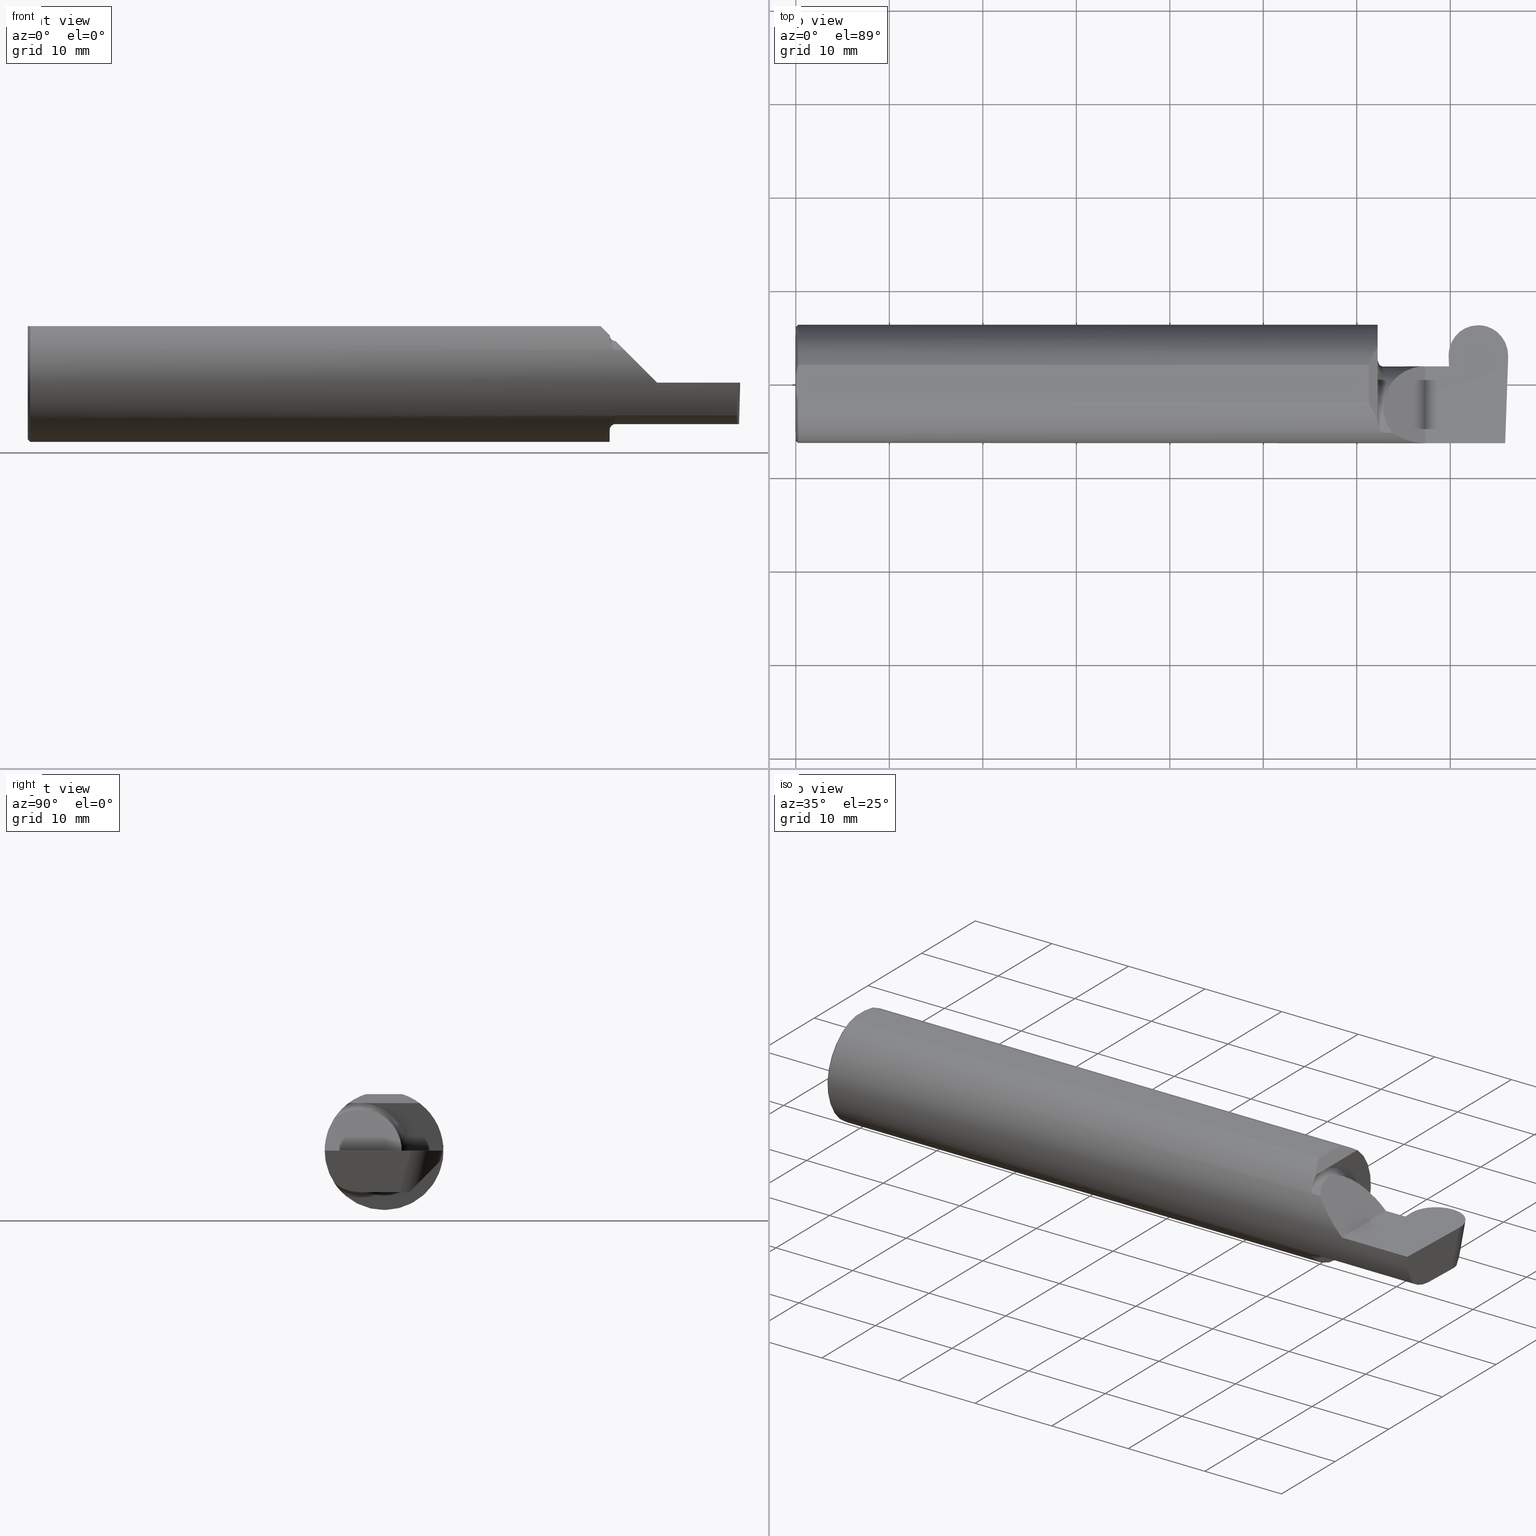
[diagram: canonical four-view strip — front | top / right | iso, engineering-drawing reading convention]
A machine part, canonical four-view strip (front | top / right | iso — engineering-drawing reading convention). The complete STEP part file that produces these views, byte-faithful:
ISO-10303-21;
HEADER;
FILE_DESCRIPTION (( 'STEP AP203' ),
    '1' );
FILE_NAME ('222530-GFR250-8.STEP',
    '2024-06-28T19:30:26',
    ( '' ),
    ( '' ),
    'SwSTEP 2.0',
    'SolidWorks 2024',
    '' );
FILE_SCHEMA (( 'CONFIG_CONTROL_DESIGN' ));
ENDSEC;

DATA;
#1 = DIRECTION ( 'NONE',  ( -0.7071067811865439090, 0.000000000000000000, -0.7071067811865511255 ) ) ;
#2 = CARTESIAN_POINT ( 'NONE',  ( 2.464302603425053029, -0.2041009206016212163, -0.1441313430770041204 ) ) ;
#3 = DIRECTION ( 'NONE',  ( 1.035298266755933276E-16, -0.2588190451025209615, -0.9659258262890682012 ) ) ;
#4 = ORIENTED_EDGE ( 'NONE', *, *, #109, .T. ) ;
#5 = CARTESIAN_POINT ( 'NONE',  ( 2.873271171754832487, 0.2278691044638435637, -0.07195728175636369184 ) ) ;
#6 = DIRECTION ( 'NONE',  ( 0.000000000000000000, 1.000000000000000000, 0.000000000000000000 ) ) ;
#7 = EDGE_LOOP ( 'NONE', ( #737, #640, #493, #232, #280, #778 ) ) ;
#8 = PERSON_AND_ORGANIZATION ( #258, #67 ) ;
#9 = EDGE_CURVE ( 'NONE', #785, #682, #33, .T. ) ;
#10 = VECTOR ( 'NONE', #212, 39.37007874015748143 ) ;
#11 = LINE ( 'NONE', #269, #489 ) ;
#12 = DIRECTION ( 'NONE',  ( -1.000000000000000000, -4.000085335087457591E-16, -0.000000000000000000 ) ) ;
#13 = AXIS2_PLACEMENT_3D ( 'NONE', #143, #12, #650 ) ;
#14 = ORIENTED_EDGE ( 'NONE', *, *, #301, .T. ) ;
#15 = DIRECTION ( 'NONE',  ( 0.02590004391968268524, 0.2587322210431824976, 0.9656017944882975268 ) ) ;
#16 = CARTESIAN_POINT ( 'NONE',  ( 2.450000000000000178, 0.2498499999999999610, 0.000000000000000000 ) ) ;
#17 = ORIENTED_EDGE ( 'NONE', *, *, #109, .F. ) ;
#18 = AXIS2_PLACEMENT_3D ( 'NONE', #346, #605, #83 ) ;
#19 = APPROVAL_STATUS ( 'not_yet_approved' ) ;
#20 = DIRECTION ( 'NONE',  ( 4.000085335087457591E-16, -1.000000000000000000, -4.000085335087417655E-16 ) ) ;
#21 = ORIENTED_EDGE ( 'NONE', *, *, #411, .F. ) ;
#22 =( GEOMETRIC_REPRESENTATION_CONTEXT ( 3 ) GLOBAL_UNCERTAINTY_ASSIGNED_CONTEXT ( ( #92 ) ) GLOBAL_UNIT_ASSIGNED_CONTEXT ( ( #588, #240, #438 ) ) REPRESENTATION_CONTEXT ( 'NONE', 'WORKASPACE' ) );
#23 = CC_DESIGN_PERSON_AND_ORGANIZATION_ASSIGNMENT ( #154, #786, ( #512 ) ) ;
#24 = EDGE_CURVE ( 'NONE', #767, #304, #321, .T. ) ;
#25 = DIRECTION ( 'NONE',  ( -4.000085335087458577E-16, 1.000000000000000000, 4.898691701931117728E-32 ) ) ;
#26 = ORIENTED_EDGE ( 'NONE', *, *, #262, .F. ) ;
#27 = CIRCLE ( 'NONE', #62, 0.2498499999999999888 ) ;
#28 = CARTESIAN_POINT ( 'NONE',  ( 2.450000000000000178, -0.1497498664440164717, 0.1999999999999981515 ) ) ;
#29 = FACE_OUTER_BOUND ( 'NONE', #42, .T. ) ;
#30 = VERTEX_POINT ( 'NONE', #54 ) ;
#31 = DIRECTION ( 'NONE',  ( 0.000000000000000000, 0.000000000000000000, -1.000000000000000000 ) ) ;
#32 = EDGE_LOOP ( 'NONE', ( #90, #679, #431, #85 ) ) ;
#33 =( BOUNDED_CURVE ( )  B_SPLINE_CURVE ( 3, ( #701, #576, #377, #523 ),
 .UNSPECIFIED., .F., .F. ) 
 B_SPLINE_CURVE_WITH_KNOTS ( ( 4, 4 ),
 ( 4.955210089620395664, 4.975001206325426750 ),
 .UNSPECIFIED. ) 
 CURVE ( )  GEOMETRIC_REPRESENTATION_ITEM ( )  RATIONAL_B_SPLINE_CURVE ( ( 1.000000000000000000, 0.9999673595746501054, 0.9999673595746501054, 1.000000000000000000 ) ) 
 REPRESENTATION_ITEM ( '' )  );
#34 = CARTESIAN_POINT ( 'NONE',  ( 2.739255635872652750, 0.07407892981889423190, -0.004071607948631744862 ) ) ;
#35 = CARTESIAN_POINT ( 'NONE',  ( 2.600434159100402987, -0.2498499999999999610, 0.04956584089959698708 ) ) ;
#36 = EDGE_LOOP ( 'NONE', ( #59, #436, #293 ) ) ;
#37 = EDGE_CURVE ( 'NONE', #587, #484, #520, .T. ) ;
#38 = LINE ( 'NONE', #562, #506 ) ;
#39 = DIRECTION ( 'NONE',  ( -0.03489949670249542502, -0.9993908270190959842, 1.222058880457094394E-16 ) ) ;
#40 = EDGE_LOOP ( 'NONE', ( #243, #150, #169, #508, #336, #517 ) ) ;
#41 = DIRECTION ( 'NONE',  ( 1.000000000000000000, -0.000000000000000000, -0.000000000000000000 ) ) ;
#42 = EDGE_LOOP ( 'NONE', ( #314, #354, #234 ) ) ;
#43 = ADVANCED_FACE ( 'NONE', ( #194 ), #761, .T. ) ;
#44 = DIRECTION ( 'NONE',  ( -0.7071067811865439090, 0.000000000000000000, -0.7071067811865511255 ) ) ;
#45 = VERTEX_POINT ( 'NONE', #692 ) ;
#46 = CIRCLE ( 'NONE', #130, 0.2000000000000001221 ) ;
#47 = DIRECTION ( 'NONE',  ( -0.7071067811865511255, 0.000000000000000000, 0.7071067811865439090 ) ) ;
#48 = VECTOR ( 'NONE', #744, 39.37007874015748854 ) ;
#49 = CARTESIAN_POINT ( 'NONE',  ( 0.009999999999999927350, 0.07650098038587520299, 0.2378499999999998671 ) ) ;
#50 = ORIENTED_EDGE ( 'NONE', *, *, #24, .T. ) ;
#51 = CARTESIAN_POINT ( 'NONE',  ( 2.752403753671178954, 0.1033802780873585708, -0.1750000000000001277 ) ) ;
#52 = APPROVAL_PERSON_ORGANIZATION ( #278, #479, #726 ) ;
#53 = CARTESIAN_POINT ( 'NONE',  ( -0.002039370078740339320, 0.2348243371481683328, -0.04599999999999999922 ) ) ;
#54 = CARTESIAN_POINT ( 'NONE',  ( 0.009999999999999927350, 0.000000000000000000, -0.2498499999999999888 ) ) ;
#55 = AXIS2_PLACEMENT_3D ( 'NONE', #591, #776, #463 ) ;
#56 = CARTESIAN_POINT ( 'NONE',  ( 0.009999999999999927350, -0.07650098038587520299, 0.2378499999999998671 ) ) ;
#57 = CARTESIAN_POINT ( 'NONE',  ( 2.475000000000000089, -0.2080850024789288044, 0.1382955322609670246 ) ) ;
#58 = ORIENTED_EDGE ( 'NONE', *, *, #268, .T. ) ;
#59 = ORIENTED_EDGE ( 'NONE', *, *, #592, .T. ) ;
#60 = CARTESIAN_POINT ( 'NONE',  ( 2.987107171508847081, -0.2498499999999999888, 0.000000000000000000 ) ) ;
#61 = CARTESIAN_POINT ( 'NONE',  ( 3.000000000000000444, -0.2500000000000000555, 0.000000000000000000 ) ) ;
#62 = AXIS2_PLACEMENT_3D ( 'NONE', #671, #351, #31 ) ;
#63 = ADVANCED_FACE ( 'NONE', ( #625 ), #581, .T. ) ;
#64 = CYLINDRICAL_SURFACE ( 'NONE', #571, 0.1255000000000000004 ) ;
#65 = DIRECTION ( 'NONE',  ( -0.03489949670249486297, 0.9993908270190959842, 0.000000000000000000 ) ) ;
#66 = DIRECTION ( 'NONE',  ( -0.03489949670249486297, 0.9993908270190959842, -1.222058880457094394E-16 ) ) ;
#67 = ORGANIZATION ( 'UNSPECIFIED', 'UNSPECIFIED', '' ) ;
#68 = CARTESIAN_POINT ( 'NONE',  ( 2.873967416046591783, 0.2348243371481683328, -0.04599999999999999922 ) ) ;
#69 = ORIENTED_EDGE ( 'NONE', *, *, #298, .F. ) ;
#70 = ADVANCED_FACE ( 'NONE', ( #830 ), #374, .F. ) ;
#71 = COORDINATED_UNIVERSAL_TIME_OFFSET ( 8, 0, .BEHIND. ) ;
#72 = LINE ( 'NONE', #337, #622 ) ;
#73 = EDGE_CURVE ( 'NONE', #636, #822, #239, .T. ) ;
#74 = CARTESIAN_POINT ( 'NONE',  ( 2.768056554299977989, 0.1849635101964372530, -0.09586082695173156476 ) ) ;
#75 = ORIENTED_EDGE ( 'NONE', *, *, #298, .T. ) ;
#76 = APPROVAL_ROLE ( '' ) ;
#77 = DIRECTION ( 'NONE',  ( -0.03489949670249543195, -0.9993908270190959842, 0.000000000000000000 ) ) ;
#78 = B_SPLINE_CURVE_WITH_KNOTS ( 'NONE', 3,
 ( #101, #681, #224, #486, #361, #91, #801, #365, #550, #227, #417, #559, #104, #616 ),
 .UNSPECIFIED., .F., .F.,
 ( 4, 2, 2, 2, 2, 2, 4 ),
 ( 0.0003834465838148107459, 0.0008781406165086604390, 0.001372834649202510186, 0.001867528681896359717, 0.002114875698243289578, 0.002238549206416754183, 0.002362222714590218788 ),
 .UNSPECIFIED. ) ;
#79 = PLANE ( 'NONE',  #789 ) ;
#80 = CC_DESIGN_DATE_AND_TIME_ASSIGNMENT ( #666, #333, ( #343 ) ) ;
#81 = AXIS2_PLACEMENT_3D ( 'NONE', #209, #719, #6 ) ;
#82 = ORIENTED_EDGE ( 'NONE', *, *, #458, .T. ) ;
#83 = DIRECTION ( 'NONE',  ( 1.000000000000000000, 0.000000000000000000, 0.000000000000000000 ) ) ;
#84 = DIRECTION ( 'NONE',  ( -0.02590004391968268177, -0.2587322210431824976, -0.9656017944882975268 ) ) ;
#85 = ORIENTED_EDGE ( 'NONE', *, *, #810, .T. ) ;
#86 = APPROVAL_DATE_TIME ( #661, #479 ) ;
#87 = AXIS2_PLACEMENT_3D ( 'NONE', #315, #700, #579 ) ;
#88 = ADVANCED_FACE ( 'NONE', ( #460 ), #400, .F. ) ;
#89 = CARTESIAN_POINT ( 'NONE',  ( 2.420642670853159650, -0.1029056323555046087, 0.2293573291468382624 ) ) ;
#90 = ORIENTED_EDGE ( 'NONE', *, *, #251, .F. ) ;
#91 = CARTESIAN_POINT ( 'NONE',  ( 2.456159563508733878, -0.1933019864360847606, 0.1584298865564834624 ) ) ;
#92 = UNCERTAINTY_MEASURE_WITH_UNIT (LENGTH_MEASURE( 1.000000000000000082E-05 ), #588, 'distance_accuracy_value', 'NONE');
#93 = EDGE_CURVE ( 'NONE', #304, #699, #532, .T. ) ;
#94 = ORIENTED_EDGE ( 'NONE', *, *, #116, .T. ) ;
#95 = VECTOR ( 'NONE', #157, 39.37007874015748143 ) ;
#96 =( BOUNDED_CURVE ( )  B_SPLINE_CURVE ( 3, ( #122, #448, #621, #518 ),
 .UNSPECIFIED., .F., .T. ) 
 B_SPLINE_CURVE_WITH_KNOTS ( ( 4, 4 ),
 ( 0.02920211248569611756, 0.2720232217214048620 ),
 .UNSPECIFIED. ) 
 CURVE ( )  GEOMETRIC_REPRESENTATION_ITEM ( )  RATIONAL_B_SPLINE_CURVE ( ( 1.000000000000000000, 0.9950925250835043201, 0.9950925250835043201, 1.000000000000000000 ) ) 
 REPRESENTATION_ITEM ( '' )  );
#97 = CARTESIAN_POINT ( 'NONE',  ( 2.650000000000000355, -0.2498499999999999610, 4.286263797015729199E-17 ) ) ;
#98 = ORIENTED_EDGE ( 'NONE', *, *, #674, .T. ) ;
#99 = APPROVAL_PERSON_ORGANIZATION ( #543, #451, #722 ) ;
#100 = CARTESIAN_POINT ( 'NONE',  ( 2.986812263240209653, -0.1771157075472504783, -0.1623092683844332973 ) ) ;
#101 = CARTESIAN_POINT ( 'NONE',  ( 2.450000000000000178, -0.1616050818046600723, 0.1905487340154983222 ) ) ;
#102 = VERTEX_POINT ( 'NONE', #325 ) ;
#103 = CARTESIAN_POINT ( 'NONE',  ( 2.753585465288466594, -0.1010545757111804416, -0.1750000000000000722 ) ) ;
#104 = CARTESIAN_POINT ( 'NONE',  ( 2.473329956043142541, -0.2080850024798589493, 0.1382955322595677272 ) ) ;
#105 = ORIENTED_EDGE ( 'NONE', *, *, #73, .F. ) ;
#106 = CARTESIAN_POINT ( 'NONE',  ( 2.750367999175829414, 0.07414999999999984104, 0.000000000000000000 ) ) ;
#107 = EDGE_LOOP ( 'NONE', ( #409, #561, #50, #82, #461, #742, #526, #58, #563, #121, #617, #651, #161, #729, #763 ) ) ;
#108 = CARTESIAN_POINT ( 'NONE',  ( 2.450000000000000178, 0.1497498664440163885, 0.1999999999999982903 ) ) ;
#109 = EDGE_CURVE ( 'NONE', #393, #356, #203, .T. ) ;
#110 = ORIENTED_EDGE ( 'NONE', *, *, #93, .F. ) ;
#111 = AXIS2_PLACEMENT_3D ( 'NONE', #352, #672, #736 ) ;
#112 = CARTESIAN_POINT ( 'NONE',  ( 2.475000000000000089, -0.1008500000000001617, 0.1749999999999984346 ) ) ;
#113 = CARTESIAN_POINT ( 'NONE',  ( 2.999793206199442785, 0.1134305025558126345, 0.000000000000000000 ) ) ;
#114 = CYLINDRICAL_SURFACE ( 'NONE', #195, 0.1750000000000000444 ) ;
#115 = CARTESIAN_POINT ( 'NONE',  ( 2.450000000000000178, -0.1008500000000001201, 0.000000000000000000 ) ) ;
#116 = EDGE_CURVE ( 'NONE', #356, #165, #162, .T. ) ;
#117 = AXIS2_PLACEMENT_3D ( 'NONE', #619, #44, #816 ) ;
#118 = CARTESIAN_POINT ( 'NONE',  ( 2.750367999175829414, 0.07414999999999984104, -4.822780832875165838E-21 ) ) ;
#119 = AXIS2_PLACEMENT_3D ( 'NONE', #525, #355, #676 ) ;
#120 = DIRECTION ( 'NONE',  ( 1.000000000000000000, 0.000000000000000000, 0.000000000000000000 ) ) ;
#121 = ORIENTED_EDGE ( 'NONE', *, *, #402, .T. ) ;
#122 = CARTESIAN_POINT ( 'NONE',  ( 2.748789500000000441, 0.1195161796598796233, -0.0003276550781940968065 ) ) ;
#123 = CARTESIAN_POINT ( 'NONE',  ( 0.000000000000000000, 0.000000000000000000, 0.000000000000000000 ) ) ;
#124 = CARTESIAN_POINT ( 'NONE',  ( 4.499279347985562423E-32, -0.2498499999999999610, 3.673940397442054938E-16 ) ) ;
#125 = ORIENTED_EDGE ( 'NONE', *, *, #419, .F. ) ;
#126 = CARTESIAN_POINT ( 'NONE',  ( 0.000000000000000000, 0.07650098038587520299, 0.2378499999999998671 ) ) ;
#127 = FACE_OUTER_BOUND ( 'NONE', #817, .T. ) ;
#128 = FACE_OUTER_BOUND ( 'NONE', #107, .T. ) ;
#129 = VERTEX_POINT ( 'NONE', #590 ) ;
#130 = AXIS2_PLACEMENT_3D ( 'NONE', #241, #197, #459 ) ;
#131 = CARTESIAN_POINT ( 'NONE',  ( 2.451385488563270432, -0.1808287530430323642, -0.1728790649396289569 ) ) ;
#132 = APPLICATION_CONTEXT ( 'configuration controlled 3d designs of mechanical parts and assemblies' ) ;
#133 = VECTOR ( 'NONE', #667, 39.37007874015748143 ) ;
#134 = DIRECTION ( 'NONE',  ( 0.000000000000000000, 0.000000000000000000, 1.000000000000000000 ) ) ;
#135 = VERTEX_POINT ( 'NONE', #596 ) ;
#136 = PLANE ( 'NONE',  #678 ) ;
#137 = APPROVAL_PERSON_ORGANIZATION ( #538, #179, #76 ) ;
#138 = CARTESIAN_POINT ( 'NONE',  ( 2.753585400763539415, -0.1008500000000000091, -0.1750000000000000444 ) ) ;
#139 = ORIENTED_EDGE ( 'NONE', *, *, #694, .T. ) ;
#140 = SECURITY_CLASSIFICATION_LEVEL ( 'unclassified' ) ;
#141 = AXIS2_PLACEMENT_3D ( 'NONE', #376, #519, #764 ) ;
#142 = DIRECTION ( 'NONE',  ( -0.03489949670249542502, -0.9993908270190959842, 0.000000000000000000 ) ) ;
#143 = CARTESIAN_POINT ( 'NONE',  ( 2.475000000000000089, -0.1008500000000001062, 0.000000000000000000 ) ) ;
#144 = VERTEX_POINT ( 'NONE', #392 ) ;
#145 = SHAPE_DEFINITION_REPRESENTATION ( #516, #281 ) ;
#146 =( BOUNDED_CURVE ( )  B_SPLINE_CURVE ( 3, ( #751, #385, #821, #754 ),
 .UNSPECIFIED., .F., .T. ) 
 B_SPLINE_CURVE_WITH_KNOTS ( ( 4, 4 ),
 ( 0.3111857320071445554, 0.6427002007837623321 ),
 .UNSPECIFIED. ) 
 CURVE ( )  GEOMETRIC_REPRESENTATION_ITEM ( )  RATIONAL_B_SPLINE_CURVE ( ( 1.000000000000000000, 0.9908624633578575480, 0.9908624633578575480, 1.000000000000000000 ) ) 
 REPRESENTATION_ITEM ( '' )  );
#147 = CARTESIAN_POINT ( 'NONE',  ( 2.468863362722769406, -0.2068301641248768696, -0.1401678546132364700 ) ) ;
#148 = CYLINDRICAL_SURFACE ( 'NONE', #308, 0.2498499999999999888 ) ;
#149 = CC_DESIGN_DATE_AND_TIME_ASSIGNMENT ( #200, #466, ( #827 ) ) ;
#150 = ORIENTED_EDGE ( 'NONE', *, *, #73, .T. ) ;
#151 = COORDINATED_UNIVERSAL_TIME_OFFSET ( 8, 0, .BEHIND. ) ;
#152 = DIRECTION ( 'NONE',  ( 0.000000000000000000, -1.000000000000000000, 0.000000000000000000 ) ) ;
#153 = ORIENTED_EDGE ( 'NONE', *, *, #714, .T. ) ;
#154 = PERSON_AND_ORGANIZATION ( #258, #67 ) ;
#155 = VECTOR ( 'NONE', #41, 39.37007874015748143 ) ;
#156 = ADVANCED_FACE ( 'NONE', ( #329 ), #710, .T. ) ;
#157 = DIRECTION ( 'NONE',  ( -1.817096561191020776E-16, 0.4473225909137158451, -0.8943726849911286525 ) ) ;
#158 = ORIENTED_EDGE ( 'NONE', *, *, #313, .F. ) ;
#159 = CARTESIAN_POINT ( 'NONE',  ( 2.450000000000000178, -0.1008500000000001201, 0.000000000000000000 ) ) ;
#160 = LINE ( 'NONE', #422, #499 ) ;
#161 = ORIENTED_EDGE ( 'NONE', *, *, #567, .T. ) ;
#162 = CIRCLE ( 'NONE', #81, 0.2498499999999999888 ) ;
#163 = EDGE_CURVE ( 'NONE', #822, #673, #560, .T. ) ;
#164 = LINE ( 'NONE', #231, #743 ) ;
#165 = VERTEX_POINT ( 'NONE', #271 ) ;
#166 = CARTESIAN_POINT ( 'NONE',  ( 2.748866015324560319, 0.1171611899918090366, 0.000000000000000000 ) ) ;
#167 = DIRECTION ( 'NONE',  ( 0.000000000000000000, 1.000000000000000000, 0.000000000000000000 ) ) ;
#168 = B_SPLINE_CURVE_WITH_KNOTS ( 'NONE', 3,
 ( #56, #319, #693, #641 ),
 .UNSPECIFIED., .F., .F.,
 ( 4, 4 ),
 ( 0.01317593029100226111, 0.01435802289191457325 ),
 .UNSPECIFIED. ) ;
#169 = ORIENTED_EDGE ( 'NONE', *, *, #163, .T. ) ;
#170 = LINE ( 'NONE', #429, #397 ) ;
#171 = DIRECTION ( 'NONE',  ( 4.000085335087457591E-16, -1.000000000000000000, 0.000000000000000000 ) ) ;
#172 = ORIENTED_EDGE ( 'NONE', *, *, #163, .F. ) ;
#173 = ADVANCED_FACE ( 'NONE', ( #787 ), #79, .F. ) ;
#174 = VECTOR ( 'NONE', #183, 39.37007874015748143 ) ;
#175 = ADVANCED_FACE ( 'NONE', ( #339 ), #724, .T. ) ;
#176 = CARTESIAN_POINT ( 'NONE',  ( 2.873967416046591783, 0.2348243371481683328, -0.04599999999999999922 ) ) ;
#177 = DIRECTION ( 'NONE',  ( -0.000000000000000000, 1.000000000000000000, -0.000000000000000000 ) ) ;
#178 = ORIENTED_EDGE ( 'NONE', *, *, #572, .T. ) ;
#179 = APPROVAL ( #528, 'UNSPECIFIED' ) ;
#180 = CARTESIAN_POINT ( 'NONE',  ( 2.985913134503198840, -0.2355204011147991605, -0.09701513151466768792 ) ) ;
#181 = ADVANCED_FACE ( 'NONE', ( #128 ), #148, .T. ) ;
#182 = LINE ( 'NONE', #455, #775 ) ;
#183 = DIRECTION ( 'NONE',  ( -1.000000000000000000, -0.000000000000000000, -0.000000000000000000 ) ) ;
#184 =( BOUNDED_CURVE ( )  B_SPLINE_CURVE ( 3, ( #426, #35, #677, #554 ),
 .UNSPECIFIED., .F., .T. ) 
 B_SPLINE_CURVE_WITH_KNOTS ( ( 4, 4 ),
 ( 4.712388980384689674, 5.298966915116347209 ),
 .UNSPECIFIED. ) 
 CURVE ( )  GEOMETRIC_REPRESENTATION_ITEM ( )  RATIONAL_B_SPLINE_CURVE ( ( 1.000000000000000000, 0.9715321379117538569, 0.9715321379117538569, 1.000000000000000000 ) ) 
 REPRESENTATION_ITEM ( '' )  );
#185 = LINE ( 'NONE', #53, #155 ) ;
#186 = VERTEX_POINT ( 'NONE', #68 ) ;
#187 = CARTESIAN_POINT ( 'NONE',  ( 2.650000000000000355, -0.2500000000000000555, 4.286263797015729199E-17 ) ) ;
#188 = VECTOR ( 'NONE', #735, 39.37007874015748143 ) ;
#189 = CARTESIAN_POINT ( 'NONE',  ( 0.002005502345409073024, 0.04647171987093980799, 0.2378499999999998671 ) ) ;
#190 = ORIENTED_EDGE ( 'NONE', *, *, #694, .F. ) ;
#191 =( LENGTH_UNIT ( ) NAMED_UNIT ( * ) SI_UNIT ( $, .METRE. ) );
#192 = PLANE ( 'NONE',  #141 ) ;
#193 = APPLICATION_CONTEXT ( 'configuration controlled 3d designs of mechanical parts and assemblies' ) ;
#194 = FACE_OUTER_BOUND ( 'NONE', #7, .T. ) ;
#195 = AXIS2_PLACEMENT_3D ( 'NONE', #444, #575, #439 ) ;
#196 = CARTESIAN_POINT ( 'NONE',  ( 2.511704467739032332, -0.2080850024789289987, 0.1382955322609668025 ) ) ;
#197 = DIRECTION ( 'NONE',  ( -1.000000000000000000, -4.000085335087457591E-16, -0.000000000000000000 ) ) ;
#198 = CARTESIAN_POINT ( 'NONE',  ( 2.753013396079577735, 0.1058243371481696476, -0.1750000000000001277 ) ) ;
#199 = EDGE_LOOP ( 'NONE', ( #593, #446, #668, #501 ) ) ;
#200 = DATE_AND_TIME ( #481, #577 ) ;
#201 = PLANE ( 'NONE',  #372 ) ;
#202 = CIRCLE ( 'NONE', #418, 0.2498499999999999888 ) ;
#203 = LINE ( 'NONE', #784, #698 ) ;
#204 = ORIENTED_EDGE ( 'NONE', *, *, #765, .F. ) ;
#205 = PERSON_AND_ORGANIZATION_ROLE ( 'design_owner' ) ;
#206 = FACE_OUTER_BOUND ( 'NONE', #456, .T. ) ;
#207 = ADVANCED_FACE ( 'NONE', ( #780 ), #64, .T. ) ;
#208 = LOCAL_TIME ( 12, 30, 26.00000000000000000, #273 ) ;
#209 = CARTESIAN_POINT ( 'NONE',  ( 2.450000000000000178, 0.000000000000000000, 0.000000000000000000 ) ) ;
#210 = VERTEX_POINT ( 'NONE', #655 ) ;
#211 = DATE_AND_TIME ( #782, #675 ) ;
#212 = DIRECTION ( 'NONE',  ( 4.000085335087457591E-16, -1.000000000000000000, -4.000085335087417655E-16 ) ) ;
#213 = DIRECTION ( 'NONE',  ( 0.000000000000000000, -0.9659258262890682012, 0.2588190451025209615 ) ) ;
#214 = ORIENTED_EDGE ( 'NONE', *, *, #454, .T. ) ;
#215 = CARTESIAN_POINT ( 'NONE',  ( 0.000000000000000000, 0.000000000000000000, 0.000000000000000000 ) ) ;
#216 = ORIENTED_EDGE ( 'NONE', *, *, #752, .T. ) ;
#217 = PERSON_AND_ORGANIZATION ( #258, #67 ) ;
#218 = EDGE_CURVE ( 'NONE', #277, #587, #468, .T. ) ;
#219 = CARTESIAN_POINT ( 'NONE',  ( 2.986150208451177512, -0.2080850024789288599, -0.1382955322609668025 ) ) ;
#220 = ORIENTED_EDGE ( 'NONE', *, *, #507, .T. ) ;
#221 = VECTOR ( 'NONE', #303, 39.37007874015748143 ) ;
#222 = EDGE_CURVE ( 'NONE', #682, #284, #502, .T. ) ;
#223 = CARTESIAN_POINT ( 'NONE',  ( 2.748789500000000441, 0.1196039745734777116, 3.076441347372055469E-17 ) ) ;
#224 = CARTESIAN_POINT ( 'NONE',  ( 2.450367168219774516, -0.1713400252854600514, 0.1819601557798509184 ) ) ;
#225 = EDGE_LOOP ( 'NONE', ( #204, #26, #220, #542 ) ) ;
#226 = CARTESIAN_POINT ( 'NONE',  ( 2.748789500000000441, 0.1943187064415508314, 3.216169852589703280E-17 ) ) ;
#227 = CARTESIAN_POINT ( 'NONE',  ( 2.467647060162629025, -0.2062109266231180738, 0.1410799729252291135 ) ) ;
#228 = ORIENTED_EDGE ( 'NONE', *, *, #642, .T. ) ;
#229 = AXIS2_PLACEMENT_3D ( 'NONE', #541, #395, #658 ) ;
#230 = CARTESIAN_POINT ( 'NONE',  ( 2.433375685911487452, -0.1275470899297185268, 0.2166243140885105445 ) ) ;
#231 = CARTESIAN_POINT ( 'NONE',  ( 2.989756814851906697, -0.08644748268070623354, -0.1750000000000000722 ) ) ;
#232 = ORIENTED_EDGE ( 'NONE', *, *, #9, .F. ) ;
#233 = CARTESIAN_POINT ( 'NONE',  ( 2.412149999999998240, -0.07650098038587530014, 0.2378499999999998948 ) ) ;
#234 = ORIENTED_EDGE ( 'NONE', *, *, #342, .F. ) ;
#235 = DIRECTION ( 'NONE',  ( 0.000000000000000000, -0.9998476951563912696, 0.01745240643728358451 ) ) ;
#236 = AXIS2_PLACEMENT_3D ( 'NONE', #61, #649, #263 ) ;
#237 = DIRECTION ( 'NONE',  ( -1.000000000000000000, -4.000085335087457591E-16, -0.000000000000000000 ) ) ;
#238 = VERTEX_POINT ( 'NONE', #715 ) ;
#239 = CIRCLE ( 'NONE', #711, 0.1750000000000000444 ) ;
#240 =( NAMED_UNIT ( * ) PLANE_ANGLE_UNIT ( ) SI_UNIT ( $, .RADIAN. ) );
#241 = CARTESIAN_POINT ( 'NONE',  ( 2.450000000000000178, -0.1008500000000001201, 0.000000000000000000 ) ) ;
#242 = EDGE_LOOP ( 'NONE', ( #627, #690, #423, #153 ) ) ;
#243 = ORIENTED_EDGE ( 'NONE', *, *, #485, .T. ) ;
#244 = LOCAL_TIME ( 12, 30, 26.00000000000000000, #266 ) ;
#245 = FACE_OUTER_BOUND ( 'NONE', #781, .T. ) ;
#246 = CARTESIAN_POINT ( 'NONE',  ( 3.002511784637379222, 0.1912804032740405558, -7.160714913043396685E-18 ) ) ;
#247 = FACE_OUTER_BOUND ( 'NONE', #604, .T. ) ;
#248 = EDGE_CURVE ( 'NONE', #129, #569, #603, .T. ) ;
#249 = ORIENTED_EDGE ( 'NONE', *, *, #357, .F. ) ;
#250 = DIRECTION ( 'NONE',  ( 0.000000000000000000, -0.01745240643728358451, -0.9998476951563912696 ) ) ;
#251 = EDGE_CURVE ( 'NONE', #144, #45, #492, .T. ) ;
#252 = ORIENTED_EDGE ( 'NONE', *, *, #819, .T. ) ;
#253 = EDGE_LOOP ( 'NONE', ( #125, #750, #387, #427, #794, #158, #110, #533, #190, #401 ) ) ;
#254 = DIRECTION ( 'NONE',  ( -0.01806954526206910883, 0.01744955702544859211, 0.9996844524616943506 ) ) ;
#255 = CARTESIAN_POINT ( 'NONE',  ( 2.754531504291869659, -2.688765469242836659, -0.1821862048796526190 ) ) ;
#256 = DIRECTION ( 'NONE',  ( -1.000000000000000000, -4.000085335087457591E-16, -0.000000000000000000 ) ) ;
#257 = FACE_OUTER_BOUND ( 'NONE', #225, .T. ) ;
#258 = PERSON ( 'UNSPECIFIED', 'UNSPECIFIED', 'UNSPECIFIED', ('UNSPECIFIED'), ('UNSPECIFIED'), ('UNSPECIFIED') ) ;
#259 = CARTESIAN_POINT ( 'NONE',  ( 2.462579853086619863, -0.2024300470081733527, -0.1464774911482687736 ) ) ;
#260 = VERTEX_POINT ( 'NONE', #219 ) ;
#261 = APPLICATION_PROTOCOL_DEFINITION ( 'international standard', 'config_control_design', 1994, #193 ) ;
#262 = EDGE_CURVE ( 'NONE', #135, #144, #353, .T. ) ;
#263 = DIRECTION ( 'NONE',  ( -1.000000000000000000, 0.000000000000000000, 1.224646799147351975E-16 ) ) ;
#264 = CARTESIAN_POINT ( 'NONE',  ( 2.753553955298210898, -0.001152430219569880367, -0.1750000000000000722 ) ) ;
#265 = VERTEX_POINT ( 'NONE', #494 ) ;
#266 = COORDINATED_UNIVERSAL_TIME_OFFSET ( 8, 0, .BEHIND. ) ;
#267 = AXIS2_PLACEMENT_3D ( 'NONE', #657, #709, #324 ) ;
#268 = EDGE_CURVE ( 'NONE', #356, #210, #474, .T. ) ;
#269 = CARTESIAN_POINT ( 'NONE',  ( 2.999923484675441010, 0.1171611899918090643, 0.000000000000000000 ) ) ;
#270 = AXIS2_PLACEMENT_3D ( 'NONE', #115, #383, #566 ) ;
#271 = CARTESIAN_POINT ( 'NONE',  ( 2.450000000000000178, -0.1616050818046600723, 0.1905487340154983222 ) ) ;
#272 = ORIENTED_EDGE ( 'NONE', *, *, #514, .F. ) ;
#273 = COORDINATED_UNIVERSAL_TIME_OFFSET ( 8, 0, .BEHIND. ) ;
#274 = CARTESIAN_POINT ( 'NONE',  ( 2.999923484675441010, 0.1171611899918090643, 0.000000000000000000 ) ) ;
#275 = CC_DESIGN_APPROVAL ( #179, ( #343 ) ) ;
#276 = DIRECTION ( 'NONE',  ( 1.000000000000000000, 0.000000000000000000, -0.000000000000000000 ) ) ;
#277 = VERTEX_POINT ( 'NONE', #613 ) ;
#278 = PERSON_AND_ORGANIZATION ( #258, #67 ) ;
#279 = CARTESIAN_POINT ( 'NONE',  ( -0.002039370078740339320, 0.2471499999999999808, 0.000000000000000000 ) ) ;
#280 = ORIENTED_EDGE ( 'NONE', *, *, #755, .F. ) ;
#281 = ADVANCED_BREP_SHAPE_REPRESENTATION ( '222530-GFR250-8', ( #831, #18 ), #22 ) ;
#282 = DIRECTION ( 'NONE',  ( 1.000000000000000000, -0.000000000000000000, -0.000000000000000000 ) ) ;
#283 = VECTOR ( 'NONE', #358, 39.37007874015748143 ) ;
#284 = VERTEX_POINT ( 'NONE', #680 ) ;
#285 = DIRECTION ( 'NONE',  ( -1.000000000000000000, -0.000000000000000000, -0.000000000000000000 ) ) ;
#286 = CARTESIAN_POINT ( 'NONE',  ( 0.000000000000000000, 0.03090954545120574992, 0.2378499999999998671 ) ) ;
#287 = CC_DESIGN_SECURITY_CLASSIFICATION ( #343, ( #512 ) ) ;
#288 = VERTEX_POINT ( 'NONE', #663 ) ;
#289 = EDGE_CURVE ( 'NONE', #30, #608, #27, .T. ) ;
#290 = CARTESIAN_POINT ( 'NONE',  ( 2.989253867864499092, -0.1008499999999990376, -0.1750000000000000722 ) ) ;
#291 = CARTESIAN_POINT ( 'NONE',  ( 2.547487373415291412, 0.07414999999999992430, 0.1025126265847084162 ) ) ;
#292 =( BOUNDED_CURVE ( )  B_SPLINE_CURVE ( 3, ( #745, #804, #291, #294 ),
 .UNSPECIFIED., .F., .T. ) 
 B_SPLINE_CURVE_WITH_KNOTS ( ( 4, 4 ),
 ( 1.948906882769498299E-17, 1.570796326794897002 ),
 .UNSPECIFIED. ) 
 CURVE ( )  GEOMETRIC_REPRESENTATION_ITEM ( )  RATIONAL_B_SPLINE_CURVE ( ( 1.000000000000000000, 0.8047378541243649375, 0.8047378541243649375, 1.000000000000000000 ) ) 
 REPRESENTATION_ITEM ( '' )  );
#293 = ORIENTED_EDGE ( 'NONE', *, *, #251, .T. ) ;
#294 = CARTESIAN_POINT ( 'NONE',  ( 2.650000000000000355, 0.07414999999999984104, 4.286263797015729199E-17 ) ) ;
#295 = ORIENTED_EDGE ( 'NONE', *, *, #662, .T. ) ;
#296 = AXIS2_PLACEMENT_3D ( 'NONE', #697, #630, #441 ) ;
#297 = CC_DESIGN_PERSON_AND_ORGANIZATION_ASSIGNMENT ( #341, #648, ( #827 ) ) ;
#298 = EDGE_CURVE ( 'NONE', #260, #362, #380, .T. ) ;
#299 = CARTESIAN_POINT ( 'NONE',  ( 2.412149999999998240, 0.07650098038587530014, 0.2378499999999998948 ) ) ;
#300 = CARTESIAN_POINT ( 'NONE',  ( 2.999793206199442785, 0.1134305025558126345, 0.000000000000000000 ) ) ;
#301 = EDGE_CURVE ( 'NONE', #636, #825, #796, .T. ) ;
#302 = ORIENTED_EDGE ( 'NONE', *, *, #507, .F. ) ;
#303 = DIRECTION ( 'NONE',  ( 1.000000000000000000, -0.000000000000000000, -0.000000000000000000 ) ) ;
#304 = VERTEX_POINT ( 'NONE', #97 ) ;
#305 = CARTESIAN_POINT ( 'NONE',  ( 2.995099234303557623, 0.06653939388036608782, -0.1750000000000001277 ) ) ;
#306 = VECTOR ( 'NONE', #177, 39.37007874015748143 ) ;
#307 = ORIENTED_EDGE ( 'NONE', *, *, #633, .F. ) ;
#308 = AXIS2_PLACEMENT_3D ( 'NONE', #215, #600, #386 ) ;
#309 = LINE ( 'NONE', #388, #381 ) ;
#310 = EDGE_CURVE ( 'NONE', #165, #393, #762, .T. ) ;
#311 = LINE ( 'NONE', #829, #306 ) ;
#312 = CARTESIAN_POINT ( 'NONE',  ( 2.475000000000000089, -0.1008500000000001340, 0.000000000000000000 ) ) ;
#313 = EDGE_CURVE ( 'NONE', #699, #102, #609, .T. ) ;
#314 = ORIENTED_EDGE ( 'NONE', *, *, #218, .T. ) ;
#315 = CARTESIAN_POINT ( 'NONE',  ( 0.000000000000000000, 0.000000000000000000, 0.000000000000000000 ) ) ;
#316 = EDGE_CURVE ( 'NONE', #238, #129, #404, .T. ) ;
#317 = EDGE_LOOP ( 'NONE', ( #14, #740, #105 ) ) ;
#318 = PRODUCT ( '222530-GFR250-8', '222530-GFR250-8', '', ( #407 ) ) ;
#319 = CARTESIAN_POINT ( 'NONE',  ( 0.005459900170181729989, -0.06167314502012864741, 0.2378499999999998671 ) ) ;
#320 = LINE ( 'NONE', #585, #415 ) ;
#321 = LINE ( 'NONE', #124, #174 ) ;
#322 = CARTESIAN_POINT ( 'NONE',  ( 2.986150208451177512, -0.2080850024789288599, -0.1382955322609668025 ) ) ;
#323 = CC_DESIGN_PERSON_AND_ORGANIZATION_ASSIGNMENT ( #217, #730, ( #512 ) ) ;
#324 = DIRECTION ( 'NONE',  ( 0.000000000000000000, 1.000000000000000000, 0.000000000000000000 ) ) ;
#325 = CARTESIAN_POINT ( 'NONE',  ( 2.739326706053758276, 0.07414999999999984104, 0.000000000000000000 ) ) ;
#326 = EDGE_CURVE ( 'NONE', #484, #102, #433, .T. ) ;
#327 = COORDINATED_UNIVERSAL_TIME_OFFSET ( 8, 0, .BEHIND. ) ;
#328 = CARTESIAN_POINT ( 'NONE',  ( 2.650000000000000355, 0.07414999999999984104, 4.286263797015729199E-17 ) ) ;
#329 = FACE_OUTER_BOUND ( 'NONE', #702, .T. ) ;
#330 = ORIENTED_EDGE ( 'NONE', *, *, #428, .T. ) ;
#331 = AXIS2_PLACEMENT_3D ( 'NONE', #123, #120, #565 ) ;
#332 = EDGE_CURVE ( 'NONE', #480, #808, #490, .T. ) ;
#333 = DATE_TIME_ROLE ( 'classification_date' ) ;
#334 = CARTESIAN_POINT ( 'NONE',  ( 2.467611663768900510, -0.2061921161193829288, -0.1411075319999378908 ) ) ;
#335 = CARTESIAN_POINT ( 'NONE',  ( 2.814042964602051278, 0.2348243371481683606, -0.04600000000000000616 ) ) ;
#336 = ORIENTED_EDGE ( 'NONE', *, *, #652, .F. ) ;
#337 = CARTESIAN_POINT ( 'NONE',  ( 2.760318370161228163, -0.1232646843588784819, -0.1750000000000000722 ) ) ;
#338 = AXIS2_PLACEMENT_3D ( 'NONE', #312, #256, #706 ) ;
#339 = FACE_OUTER_BOUND ( 'NONE', #597, .T. ) ;
#340 = VERTEX_POINT ( 'NONE', #299 ) ;
#341 = PERSON_AND_ORGANIZATION ( #258, #67 ) ;
#342 = EDGE_CURVE ( 'NONE', #277, #746, #425, .T. ) ;
#343 = SECURITY_CLASSIFICATION ( '', '', #140 ) ;
#344 = DIRECTION ( 'NONE',  ( 0.000000000000000000, 0.9659258262890680902, -0.2588190451025210170 ) ) ;
#345 = ORIENTED_EDGE ( 'NONE', *, *, #662, .F. ) ;
#346 = CARTESIAN_POINT ( 'NONE',  ( 0.000000000000000000, 0.000000000000000000, 0.000000000000000000 ) ) ;
#347 = CONICAL_SURFACE ( 'NONE', #331, 0.2398500000000001742, 0.7853981633974431720 ) ;
#348 = CARTESIAN_POINT ( 'NONE',  ( 2.450000000000000178, -0.1497498664440164717, 0.1999999999999981515 ) ) ;
#349 = ORIENTED_EDGE ( 'NONE', *, *, #313, .T. ) ;
#350 = EDGE_CURVE ( 'NONE', #808, #129, #38, .T. ) ;
#351 = DIRECTION ( 'NONE',  ( 1.000000000000000000, 0.000000000000000000, 0.000000000000000000 ) ) ;
#352 = CARTESIAN_POINT ( 'NONE',  ( 2.450000000000000178, 0.2498499999999999610, 0.000000000000000000 ) ) ;
#353 = CIRCLE ( 'NONE', #432, 0.2398500000000001742 ) ;
#354 = ORIENTED_EDGE ( 'NONE', *, *, #819, .F. ) ;
#355 = DIRECTION ( 'NONE',  ( -1.000000000000000000, -0.000000000000000000, -0.000000000000000000 ) ) ;
#356 = VERTEX_POINT ( 'NONE', #28 ) ;
#357 = EDGE_CURVE ( 'NONE', #362, #277, #553, .T. ) ;
#358 = DIRECTION ( 'NONE',  ( 1.000000000000000000, 4.000085335087457591E-16, 0.000000000000000000 ) ) ;
#359 = EDGE_LOOP ( 'NONE', ( #94, #420, #4 ) ) ;
#360 = CARTESIAN_POINT ( 'NONE',  ( 2.986150208451177512, -0.2080850024789288599, -0.1382955322609668025 ) ) ;
#361 = CARTESIAN_POINT ( 'NONE',  ( 2.452968662030529323, -0.1849684355203375097, 0.1680843977756270868 ) ) ;
#362 = VERTEX_POINT ( 'NONE', #482 ) ;
#363 = EDGE_CURVE ( 'NONE', #102, #480, #806, .T. ) ;
#364 = CARTESIAN_POINT ( 'NONE',  ( 2.450000000000000178, -0.1008500000000002034, 0.1999999999999981792 ) ) ;
#365 = CARTESIAN_POINT ( 'NONE',  ( 2.462616400345755796, -0.2024684335577100203, 0.1464246884265641424 ) ) ;
#366 = CARTESIAN_POINT ( 'NONE',  ( 2.475000000000000089, -0.1008500000000001062, 0.000000000000000000 ) ) ;
#367 = PLANE ( 'NONE',  #117 ) ;
#368 = DIRECTION ( 'NONE',  ( 0.000000000000000000, -1.000000000000000000, 0.000000000000000000 ) ) ;
#369 = EDGE_CURVE ( 'NONE', #808, #569, #549, .T. ) ;
#370 = PLANE ( 'NONE',  #540 ) ;
#371 = PLANE ( 'NONE',  #770 ) ;
#372 = AXIS2_PLACEMENT_3D ( 'NONE', #274, #723, #142 ) ;
#373 = ORIENTED_EDGE ( 'NONE', *, *, #326, .F. ) ;
#374 = TOROIDAL_SURFACE ( 'NONE', #338, 0.2000000000000001221, 0.02500000000000007425 ) ;
#375 = LINE ( 'NONE', #126, #631 ) ;
#376 = CARTESIAN_POINT ( 'NONE',  ( 3.402190948718819996, -0.1008499999999990376, -0.1750000000000000722 ) ) ;
#377 = CARTESIAN_POINT ( 'NONE',  ( 2.752802398054977839, 0.1050117459796568037, -0.1750000000000001277 ) ) ;
#378 = CC_DESIGN_APPROVAL ( #451, ( #827 ) ) ;
#379 = CARTESIAN_POINT ( 'NONE',  ( 2.753531167726741113, 0.07109536363756174815, -0.1750000000000001277 ) ) ;
#380 =( BOUNDED_CURVE ( )  B_SPLINE_CURVE ( 3, ( #360, #100, #611, #290 ),
 .UNSPECIFIED., .F., .T. ) 
 B_SPLINE_CURVE_WITH_KNOTS ( ( 4, 4 ),
 ( 0.4474640105399736445, 1.107026853503884078 ),
 .UNSPECIFIED. ) 
 CURVE ( )  GEOMETRIC_REPRESENTATION_ITEM ( )  RATIONAL_B_SPLINE_CURVE ( ( 1.000000000000000000, 0.9640754331822825041, 0.9640754331822825041, 1.000000000000000000 ) ) 
 REPRESENTATION_ITEM ( '' )  );
#381 = VECTOR ( 'NONE', #443, 39.37007874015748143 ) ;
#382 = CARTESIAN_POINT ( 'NONE',  ( 2.990641147540828104, 0.1058243371481696476, -0.1750000000000001277 ) ) ;
#383 = DIRECTION ( 'NONE',  ( -1.000000000000000000, -4.000085335087457591E-16, -0.000000000000000000 ) ) ;
#384 = CARTESIAN_POINT ( 'NONE',  ( 2.487690731615566087, -0.1771157075472510056, 0.1623092683844330752 ) ) ;
#385 = CARTESIAN_POINT ( 'NONE',  ( 2.420642670853159650, 0.1029056323555044422, 0.2293573291468383457 ) ) ;
#386 = DIRECTION ( 'NONE',  ( 0.000000000000000000, 0.000000000000000000, 1.000000000000000000 ) ) ;
#387 = ORIENTED_EDGE ( 'NONE', *, *, #350, .F. ) ;
#388 = CARTESIAN_POINT ( 'NONE',  ( 0.000000000000000000, 0.000000000000000000, -0.2398500000000001742 ) ) ;
#389 = VECTOR ( 'NONE', #615, 39.37007874015748854 ) ;
#390 = LINE ( 'NONE', #5, #424 ) ;
#391 = EDGE_CURVE ( 'NONE', #186, #288, #531, .T. ) ;
#392 = CARTESIAN_POINT ( 'NONE',  ( 0.000000000000000000, 0.000000000000000000, -0.2398500000000001742 ) ) ;
#393 = VERTEX_POINT ( 'NONE', #364 ) ;
#394 = CARTESIAN_POINT ( 'NONE',  ( 2.473318040126429640, -0.2080850024789288599, -0.1382955322609669413 ) ) ;
#395 = DIRECTION ( 'NONE',  ( 0.000000000000000000, -0.7071067811865514585, 0.7071067811865435759 ) ) ;
#396 = VERTEX_POINT ( 'NONE', #574 ) ;
#397 = VECTOR ( 'NONE', #807, 39.37007874015748143 ) ;
#398 = APPLICATION_PROTOCOL_DEFINITION ( 'international standard', 'config_control_design', 1994, #132 ) ;
#399 = DIRECTION ( 'NONE',  ( -0.02590004391968268177, -0.2587322210431824421, -0.9656017944882975268 ) ) ;
#400 = PLANE ( 'NONE',  #229 ) ;
#401 = ORIENTED_EDGE ( 'NONE', *, *, #411, .T. ) ;
#402 = EDGE_CURVE ( 'NONE', #396, #30, #202, .T. ) ;
#403 = CARTESIAN_POINT ( 'NONE',  ( 2.450000000000000178, -0.1616050818046600723, -0.1905487340154983222 ) ) ;
#404 =( BOUNDED_CURVE ( )  B_SPLINE_CURVE ( 3, ( #556, #416, #226, #223 ),
 .UNSPECIFIED., .F., .F. ) 
 B_SPLINE_CURVE_WITH_KNOTS ( ( 4, 4 ),
 ( -8.881784197001252323E-16, 1.570796326794896780 ),
 .UNSPECIFIED. ) 
 CURVE ( )  GEOMETRIC_REPRESENTATION_ITEM ( )  RATIONAL_B_SPLINE_CURVE ( ( 1.000000000000000000, 0.8047378541243646044, 0.8047378541243646044, 1.000000000000000000 ) ) 
 REPRESENTATION_ITEM ( '' )  );
#405 = CARTESIAN_POINT ( 'NONE',  ( 2.873271171754832487, 0.1066454132645655029, -0.03947549159599728769 ) ) ;
#406 = ORIENTED_EDGE ( 'NONE', *, *, #37, .F. ) ;
#407 = MECHANICAL_CONTEXT ( 'NONE', #132, 'mechanical' ) ;
#408 = DIRECTION ( 'NONE',  ( -0.03489949670249486990, 0.9993908270190959842, -0.000000000000000000 ) ) ;
#409 = ORIENTED_EDGE ( 'NONE', *, *, #795, .F. ) ;
#410 = CALENDAR_DATE ( 2024, 28, 6 ) ;
#411 = EDGE_CURVE ( 'NONE', #496, #265, #584, .T. ) ;
#412 = EDGE_CURVE ( 'NONE', #284, #238, #759, .T. ) ;
#413 = CARTESIAN_POINT ( 'NONE',  ( 2.739326706053758276, 0.07414999999999984104, 0.000000000000000000 ) ) ;
#414 = EDGE_LOOP ( 'NONE', ( #272, #578, #178, #757 ) ) ;
#415 = VECTOR ( 'NONE', #705, 39.37007874015748143 ) ;
#416 = CARTESIAN_POINT ( 'NONE',  ( 2.799820610884365735, 0.2471499999999999808, 2.591218986574987484E-17 ) ) ;
#417 = CARTESIAN_POINT ( 'NONE',  ( 2.468876997637615478, -0.2068363917296598131, 0.1401586554522232797 ) ) ;
#418 = AXIS2_PLACEMENT_3D ( 'NONE', #820, #623, #434 ) ;
#419 = EDGE_CURVE ( 'NONE', #238, #265, #170, .T. ) ;
#420 = ORIENTED_EDGE ( 'NONE', *, *, #310, .T. ) ;
#421 = CARTESIAN_POINT ( 'NONE',  ( 2.739220100782099543, 0.07404339472834142732, -0.006107411922947610788 ) ) ;
#422 = CARTESIAN_POINT ( 'NONE',  ( 2.412149999999998240, -0.2500000000000000555, 0.2378499999999998948 ) ) ;
#423 = ORIENTED_EDGE ( 'NONE', *, *, #419, .T. ) ;
#424 = VECTOR ( 'NONE', #399, 39.37007874015748854 ) ;
#425 = LINE ( 'NONE', #103, #389 ) ;
#426 = CARTESIAN_POINT ( 'NONE',  ( 2.650000000000000355, -0.2498499999999999610, 4.286263797015729199E-17 ) ) ;
#427 = ORIENTED_EDGE ( 'NONE', *, *, #332, .F. ) ;
#428 = EDGE_CURVE ( 'NONE', #557, #362, #164, .T. ) ;
#429 = CARTESIAN_POINT ( 'NONE',  ( -0.002039370078740339320, 0.2471499999999999808, 0.000000000000000000 ) ) ;
#430 = PLANE ( 'NONE',  #704 ) ;
#431 = ORIENTED_EDGE ( 'NONE', *, *, #402, .F. ) ;
#432 = AXIS2_PLACEMENT_3D ( 'NONE', #800, #285, #558 ) ;
#433 = B_SPLINE_CURVE_WITH_KNOTS ( 'NONE', 3,
 ( #421, #34, #741, #413 ),
 .UNSPECIFIED., .F., .F.,
 ( 4, 4 ),
 ( 0.000000000000000000, 1.000000000000000000 ),
 .UNSPECIFIED. ) ;
#434 = DIRECTION ( 'NONE',  ( 0.000000000000000000, 0.000000000000000000, -1.000000000000000000 ) ) ;
#435 = DIRECTION ( 'NONE',  ( 0.9998367324388628408, 0.0003153570480505128921, 0.01806679318280336732 ) ) ;
#436 = ORIENTED_EDGE ( 'NONE', *, *, #262, .T. ) ;
#437 = EDGE_CURVE ( 'NONE', #822, #699, #292, .T. ) ;
#438 =( NAMED_UNIT ( * ) SI_UNIT ( $, .STERADIAN. ) SOLID_ANGLE_UNIT ( ) );
#439 = DIRECTION ( 'NONE',  ( 0.000000000000000000, -1.000000000000000000, 0.000000000000000000 ) ) ;
#440 = ADVANCED_FACE ( 'NONE', ( #483 ), #430, .T. ) ;
#441 = DIRECTION ( 'NONE',  ( 0.000000000000000000, -0.9659258262890683122, 0.2588190451025209615 ) ) ;
#442 = ORIENTED_EDGE ( 'NONE', *, *, #810, .F. ) ;
#443 = DIRECTION ( 'NONE',  ( 0.7071067811865511255, 0.000000000000000000, -0.7071067811865439090 ) ) ;
#444 = CARTESIAN_POINT ( 'NONE',  ( 2.450000000000000178, -0.1008500000000001201, 0.000000000000000000 ) ) ;
#445 = DIRECTION ( 'NONE',  ( -1.000000000000000000, -4.000085335087457591E-16, -0.000000000000000000 ) ) ;
#446 = ORIENTED_EDGE ( 'NONE', *, *, #769, .F. ) ;
#447 = VECTOR ( 'NONE', #644, 39.37007874015748143 ) ;
#448 = CARTESIAN_POINT ( 'NONE',  ( 2.748789500000000441, 0.1262550149847270764, -0.01380122061147707850 ) ) ;
#449 = CARTESIAN_POINT ( 'NONE',  ( 2.990641147540828104, 0.1058243371481696476, -0.1750000000000001277 ) ) ;
#450 = CARTESIAN_POINT ( 'NONE',  ( 2.995099234303557623, 0.06653939388036608782, -0.1750000000000001277 ) ) ;
#451 = APPROVAL ( #594, 'UNSPECIFIED' ) ;
#452 = ORIENTED_EDGE ( 'NONE', *, *, #669, .T. ) ;
#453 = LENGTH_MEASURE_WITH_UNIT ( LENGTH_MEASURE( 0.02539999999999999897 ), #191 );
#454 = EDGE_CURVE ( 'NONE', #210, #340, #160, .T. ) ;
#455 = CARTESIAN_POINT ( 'NONE',  ( 0.000000000000000000, -0.07650098038587520299, 0.2378499999999998671 ) ) ;
#456 = EDGE_LOOP ( 'NONE', ( #610, #295, #139, #749, #75 ) ) ;
#457 = DIRECTION ( 'NONE',  ( -1.000000000000000000, -0.000000000000000000, -0.000000000000000000 ) ) ;
#458 = EDGE_CURVE ( 'NONE', #304, #825, #184, .T. ) ;
#459 = DIRECTION ( 'NONE',  ( 0.000000000000000000, -1.000000000000000000, 0.000000000000000000 ) ) ;
#460 = FACE_OUTER_BOUND ( 'NONE', #414, .T. ) ;
#461 = ORIENTED_EDGE ( 'NONE', *, *, #301, .F. ) ;
#462 = VECTOR ( 'NONE', #3, 39.37007874015748854 ) ;
#463 = DIRECTION ( 'NONE',  ( 0.000000000000000000, 0.000000000000000000, -1.000000000000000000 ) ) ;
#464 = CARTESIAN_POINT ( 'NONE',  ( 2.750478392166241903, 0.07404339472834139957, -0.006107411922948607387 ) ) ;
#465 = EDGE_LOOP ( 'NONE', ( #452, #475, #813, #537, #330, #551, #614 ) ) ;
#466 = DATE_TIME_ROLE ( 'creation_date' ) ;
#467 = CARTESIAN_POINT ( 'NONE',  ( 2.475000000000000089, -0.2080850024789288599, -0.1382955322609669968 ) ) ;
#468 =( BOUNDED_CURVE ( )  B_SPLINE_CURVE ( 3, ( #138, #264, #477, #464 ),
 .UNSPECIFIED., .F., .T. ) 
 B_SPLINE_CURVE_WITH_KNOTS ( ( 4, 4 ),
 ( 3.159045946109714009, 4.694935687864662199 ),
 .UNSPECIFIED. ) 
 CURVE ( )  GEOMETRIC_REPRESENTATION_ITEM ( )  RATIONAL_B_SPLINE_CURVE ( ( 1.000000000000000000, 0.8128932002257817091, 0.8128932002257817091, 1.000000000000000000 ) ) 
 REPRESENTATION_ITEM ( '' )  );
#469 = CARTESIAN_POINT ( 'NONE',  ( 2.871989500000000195, 0.2348243371481683328, -0.04599999999999999922 ) ) ;
#470 = ORIENTED_EDGE ( 'NONE', *, *, #684, .T. ) ;
#471 = APPROVAL_DATE_TIME ( #211, #179 ) ;
#472 = CARTESIAN_POINT ( 'NONE',  ( 2.450000000000000178, -0.1616050818046600723, -0.1905487340154983222 ) ) ;
#473 = DIRECTION ( 'NONE',  ( 0.000000000000000000, -0.2588190451025209615, -0.9659258262890682012 ) ) ;
#474 =( BOUNDED_CURVE ( )  B_SPLINE_CURVE ( 3, ( #348, #230, #89, #233 ),
 .UNSPECIFIED., .F., .T. ) 
 B_SPLINE_CURVE_WITH_KNOTS ( ( 4, 4 ),
 ( 5.640485106395822790, 5.971999575172441510 ),
 .UNSPECIFIED. ) 
 CURVE ( )  GEOMETRIC_REPRESENTATION_ITEM ( )  RATIONAL_B_SPLINE_CURVE ( ( 1.000000000000000000, 0.9908624633578575480, 0.9908624633578575480, 1.000000000000000000 ) ) 
 REPRESENTATION_ITEM ( '' )  );
#475 = ORIENTED_EDGE ( 'NONE', *, *, #9, .T. ) ;
#476 = PERSON_AND_ORGANIZATION_ROLE ( 'classification_officer' ) ;
#477 = CARTESIAN_POINT ( 'NONE',  ( 2.752279901668356121, 0.07056399972053573055, -0.1057442486376065083 ) ) ;
#478 = B_SPLINE_CURVE_WITH_KNOTS ( 'NONE', 3,
 ( #771, #394, #535, #147, #334, #2, #259, #718, #524, #131, #595, #403 ),
 .UNSPECIFIED., .F., .F.,
 ( 4, 2, 2, 2, 2, 4 ),
 ( 1.964491429112497708E-07, 0.0001260981470478306156, 0.0002519998449527499499, 0.0005038032407626173497, 0.001007410032382352041, 0.002014623615621819689 ),
 .UNSPECIFIED. ) ;
#479 = APPROVAL ( #19, 'UNSPECIFIED' ) ;
#480 = VERTEX_POINT ( 'NONE', #106 ) ;
#481 = CALENDAR_DATE ( 2024, 28, 6 ) ;
#482 = CARTESIAN_POINT ( 'NONE',  ( 2.989253867864499092, -0.1008499999999990376, -0.1750000000000000722 ) ) ;
#483 = FACE_OUTER_BOUND ( 'NONE', #802, .T. ) ;
#484 = VERTEX_POINT ( 'NONE', #797 ) ;
#485 = EDGE_CURVE ( 'NONE', #165, #636, #78, .T. ) ;
#486 = CARTESIAN_POINT ( 'NONE',  ( 2.451849548162864600, -0.1805300287242671831, 0.1728462070311783672 ) ) ;
#487 = ORIENTED_EDGE ( 'NONE', *, *, #391, .F. ) ;
#488 = B_SPLINE_CURVE_WITH_KNOTS ( 'NONE', 3,
 ( #286, #189, #522, #49 ),
 .UNSPECIFIED., .F., .F.,
 ( 4, 4 ),
 ( 0.01593449416844765903, 0.01712021724825598876 ),
 .UNSPECIFIED. ) ;
#489 = VECTOR ( 'NONE', #77, 39.37007874015748143 ) ;
#490 = LINE ( 'NONE', #166, #747 ) ;
#491 = CARTESIAN_POINT ( 'NONE',  ( 2.748789500000000441, 0.2498499999999999610, 0.000000000000000000 ) ) ;
#492 = CIRCLE ( 'NONE', #119, 0.2398500000000001742 ) ;
#493 = ORIENTED_EDGE ( 'NONE', *, *, #222, .F. ) ;
#494 = CARTESIAN_POINT ( 'NONE',  ( 2.875201260087795863, 0.2471499999999999808, 0.000000000000000000 ) ) ;
#495 = DIRECTION ( 'NONE',  ( -1.000000000000000000, -4.000085335087457591E-16, 0.000000000000000000 ) ) ;
#496 = VERTEX_POINT ( 'NONE', #300 ) ;
#497 = ADVANCED_FACE ( 'NONE', ( #792 ), #732, .T. ) ;
#498 = VECTOR ( 'NONE', #254, 39.37007874015748143 ) ;
#499 = VECTOR ( 'NONE', #167, 39.37007874015748143 ) ;
#500 = CARTESIAN_POINT ( 'NONE',  ( 2.932279805067559586, 0.2348243371481688047, -0.04599999999999949962 ) ) ;
#501 = ORIENTED_EDGE ( 'NONE', *, *, #93, .T. ) ;
#502 =( BOUNDED_CURVE ( )  B_SPLINE_CURVE ( 3, ( #198, #74, #335, #469 ),
 .UNSPECIFIED., .F., .F. ) 
 B_SPLINE_CURVE_WITH_KNOTS ( ( 4, 4 ),
 ( 4.975001206325426750, 6.283185307179586232 ),
 .UNSPECIFIED. ) 
 CURVE ( )  GEOMETRIC_REPRESENTATION_ITEM ( )  RATIONAL_B_SPLINE_CURVE ( ( 1.000000000000000000, 0.8624004580113926455, 0.8624004580113926455, 1.000000000000000000 ) ) 
 REPRESENTATION_ITEM ( '' )  );
#503 = VECTOR ( 'NONE', #15, 39.37007874015748854 ) ;
#504 = DIRECTION ( 'NONE',  ( 0.01806679408117533442, 0.000000000000000000, -0.9998367821557817559 ) ) ;
#505 = CARTESIAN_POINT ( 'NONE',  ( 2.450000000000000178, 0.07404339472834162161, -0.006107411922938292721 ) ) ;
#506 = VECTOR ( 'NONE', #25, 39.37007874015748143 ) ;
#507 = EDGE_CURVE ( 'NONE', #135, #608, #488, .T. ) ;
#508 = ORIENTED_EDGE ( 'NONE', *, *, #687, .T. ) ;
#509 = CARTESIAN_POINT ( 'NONE',  ( 2.748789500000000441, 0.1193523022059226335, 0.000000000000000000 ) ) ;
#510 = ADVANCED_FACE ( 'NONE', ( #29 ), #511, .F. ) ;
#511 = PLANE ( 'NONE',  #513 ) ;
#512 = PRODUCT_DEFINITION_FORMATION_WITH_SPECIFIED_SOURCE ( 'ANY', '', #318, .NOT_KNOWN. ) ;
#513 = AXIS2_PLACEMENT_3D ( 'NONE', #255, #435, #504 ) ;
#514 = EDGE_CURVE ( 'NONE', #682, #288, #824, .T. ) ;
#515 = FACE_OUTER_BOUND ( 'NONE', #317, .T. ) ;
#516 = PRODUCT_DEFINITION_SHAPE ( 'NONE', 'NONE',  #827 ) ;
#517 = ORIENTED_EDGE ( 'NONE', *, *, #310, .F. ) ;
#518 = CARTESIAN_POINT ( 'NONE',  ( 2.752403753671178954, 0.1033802780873585708, -0.1750000000000001277 ) ) ;
#519 = DIRECTION ( 'NONE',  ( -0.000000000000000000, 1.223176342469858371E-16, 1.000000000000000000 ) ) ;
#520 = LINE ( 'NONE', #505, #685 ) ;
#521 = CARTESIAN_POINT ( 'NONE',  ( 2.475000000000000089, -0.1008500000000001617, 0.1749999999999984346 ) ) ;
#522 = CARTESIAN_POINT ( 'NONE',  ( 0.005466242398876407227, 0.06169385855649833772, 0.2378499999999998671 ) ) ;
#523 = CARTESIAN_POINT ( 'NONE',  ( 2.753013396079577735, 0.1058243371481696476, -0.1750000000000001277 ) ) ;
#524 = CARTESIAN_POINT ( 'NONE',  ( 2.456147634408388125, -0.1932733126899458809, -0.1584637047788200748 ) ) ;
#525 = CARTESIAN_POINT ( 'NONE',  ( 0.000000000000000000, 0.000000000000000000, 0.000000000000000000 ) ) ;
#526 = ORIENTED_EDGE ( 'NONE', *, *, #116, .F. ) ;
#527 = DIMENSIONAL_EXPONENTS ( 1.000000000000000000, 0.000000000000000000, 0.000000000000000000, 0.000000000000000000, 0.000000000000000000, 0.000000000000000000, 0.000000000000000000 ) ;
#528 = APPROVAL_STATUS ( 'not_yet_approved' ) ;
#529 = ADVANCED_FACE ( 'NONE', ( #760 ), #347, .T. ) ;
#530 = CARTESIAN_POINT ( 'NONE',  ( 2.999818293584536999, 0.1136811166044124077, 0.0009353043624648335131 ) ) ;
#531 =( BOUNDED_CURVE ( )  B_SPLINE_CURVE ( 3, ( #176, #500, #688, #449 ),
 .UNSPECIFIED., .F., .T. ) 
 B_SPLINE_CURVE_WITH_KNOTS ( ( 4, 4 ),
 ( 3.126640370658172241, 4.420746632591429304 ),
 .UNSPECIFIED. ) 
 CURVE ( )  GEOMETRIC_REPRESENTATION_ITEM ( )  RATIONAL_B_SPLINE_CURVE ( ( 1.000000000000000000, 0.8652424962921507756, 0.8652424962921507756, 1.000000000000000000 ) ) 
 REPRESENTATION_ITEM ( '' )  );
#532 = LINE ( 'NONE', #777, #447 ) ;
#533 = ORIENTED_EDGE ( 'NONE', *, *, #24, .F. ) ;
#534 = CLOSED_SHELL ( 'NONE', ( #529, #564, #440, #181, #734, #645, #670, #727, #793, #156, #70, #175, #497, #63, #546, #586, #173, #88, #774, #683, #510, #207, #43 ) ) ;
#535 = CARTESIAN_POINT ( 'NONE',  ( 2.471700027347579542, -0.2077785947292765945, -0.1387580622202828629 ) ) ;
#536 = CARTESIAN_POINT ( 'NONE',  ( 3.501298404146671484, 0.2498499999999998500, 0.2378499999999998671 ) ) ;
#537 = ORIENTED_EDGE ( 'NONE', *, *, #633, .T. ) ;
#538 = PERSON_AND_ORGANIZATION ( #258, #67 ) ;
#539 = CARTESIAN_POINT ( 'NONE',  ( 2.450000000000000178, -0.2500000000000002220, 0.1999999999999980960 ) ) ;
#540 = AXIS2_PLACEMENT_3D ( 'NONE', #628, #768, #65 ) ;
#541 = CARTESIAN_POINT ( 'NONE',  ( -0.002039370078740339320, 0.2348243371481683328, -0.04599999999999999922 ) ) ;
#542 = ORIENTED_EDGE ( 'NONE', *, *, #289, .F. ) ;
#543 = PERSON_AND_ORGANIZATION ( #258, #67 ) ;
#544 = DIRECTION ( 'NONE',  ( 1.000000000000000000, 4.000085335087457591E-16, 0.000000000000000000 ) ) ;
#545 = ORIENTED_EDGE ( 'NONE', *, *, #37, .T. ) ;
#546 = ADVANCED_FACE ( 'NONE', ( #515 ), #114, .T. ) ;
#547 = APPROVAL_DATE_TIME ( #717, #451 ) ;
#548 = AXIS2_PLACEMENT_3D ( 'NONE', #159, #739, #152 ) ;
#549 = LINE ( 'NONE', #791, #95 ) ;
#550 = CARTESIAN_POINT ( 'NONE',  ( 2.464343523383979662, -0.2041337200786082218, 0.1440846171672513221 ) ) ;
#551 = ORIENTED_EDGE ( 'NONE', *, *, #357, .T. ) ;
#552 = CC_DESIGN_APPROVAL ( #479, ( #512 ) ) ;
#553 = LINE ( 'NONE', #731, #133 ) ;
#554 = CARTESIAN_POINT ( 'NONE',  ( 2.511704467739032332, -0.2080850024789289987, 0.1382955322609668025 ) ) ;
#555 = ORIENTED_EDGE ( 'NONE', *, *, #326, .T. ) ;
#556 = CARTESIAN_POINT ( 'NONE',  ( 2.871989500000000195, 0.2471499999999999808, 0.000000000000000000 ) ) ;
#557 = VERTEX_POINT ( 'NONE', #450 ) ;
#558 = DIRECTION ( 'NONE',  ( 0.000000000000000000, 0.000000000000000000, -1.000000000000000000 ) ) ;
#559 = CARTESIAN_POINT ( 'NONE',  ( 2.471718393013770054, -0.2077830475237239793, 0.1387513848711940667 ) ) ;
#560 = CIRCLE ( 'NONE', #13, 0.1750000000000000444 ) ;
#561 = ORIENTED_EDGE ( 'NONE', *, *, #814, .T. ) ;
#562 = CARTESIAN_POINT ( 'NONE',  ( 2.748789500000000441, -0.2500000000000001110, 3.076441347372053620E-17 ) ) ;
#563 = ORIENTED_EDGE ( 'NONE', *, *, #607, .F. ) ;
#564 = ADVANCED_FACE ( 'NONE', ( #247 ), #371, .F. ) ;
#565 = DIRECTION ( 'NONE',  ( 0.000000000000000000, 0.000000000000000000, -1.000000000000000000 ) ) ;
#566 = DIRECTION ( 'NONE',  ( 0.000000000000000000, -1.000000000000000000, 0.000000000000000000 ) ) ;
#567 = EDGE_CURVE ( 'NONE', #340, #612, #146, .T. ) ;
#568 = CIRCLE ( 'NONE', #267, 0.2498499999999999888 ) ;
#569 = VERTEX_POINT ( 'NONE', #624 ) ;
#570 = PRODUCT_RELATED_PRODUCT_CATEGORY ( 'detail', '', ( #318 ) ) ;
#571 = AXIS2_PLACEMENT_3D ( 'NONE', #405, #84, #344 ) ;
#572 = EDGE_CURVE ( 'NONE', #284, #186, #185, .T. ) ;
#573 = DIRECTION ( 'NONE',  ( -1.000000000000000000, -4.000085335087457591E-16, -0.000000000000000000 ) ) ;
#574 = CARTESIAN_POINT ( 'NONE',  ( 0.009999999999999927350, -0.07650098038587520299, 0.2378499999999998671 ) ) ;
#575 = DIRECTION ( 'NONE',  ( -1.000000000000000000, -4.000085335087457591E-16, -0.000000000000000000 ) ) ;
#576 = CARTESIAN_POINT ( 'NONE',  ( 2.752599177285632415, 0.1041970330334760775, -0.1750000000000001277 ) ) ;
#577 = LOCAL_TIME ( 12, 30, 26.00000000000000000, #71 ) ;
#578 = ORIENTED_EDGE ( 'NONE', *, *, #222, .T. ) ;
#579 = DIRECTION ( 'NONE',  ( 0.000000000000000000, 0.000000000000000000, -1.000000000000000000 ) ) ;
#580 = CARTESIAN_POINT ( 'NONE',  ( 2.994065777569717479, 0.09303079560524193936, -0.1750000000000001277 ) ) ;
#581 = CYLINDRICAL_SURFACE ( 'NONE', #270, 0.1750000000000000444 ) ;
#582 = ORIENTED_EDGE ( 'NONE', *, *, #454, .F. ) ;
#583 = CARTESIAN_POINT ( 'NONE',  ( 2.511704467739032332, -0.2080850024789289987, 0.1382955322609668025 ) ) ;
#584 =( BOUNDED_CURVE ( )  B_SPLINE_CURVE ( 3, ( #113, #246, #634, #811 ),
 .UNSPECIFIED., .F., .T. ) 
 B_SPLINE_CURVE_WITH_KNOTS ( ( 4, 4 ),
 ( 1.637964922114649058, 3.237953570749844356 ),
 .UNSPECIFIED. ) 
 CURVE ( )  GEOMETRIC_REPRESENTATION_ITEM ( )  RATIONAL_B_SPLINE_CURVE ( ( 1.000000000000000000, 0.7978071872141900833, 0.7978071872141900833, 1.000000000000000000 ) ) 
 REPRESENTATION_ITEM ( '' )  );
#585 = CARTESIAN_POINT ( 'NONE',  ( 2.750367999175829414, 0.07414999999999984104, -4.822780832875165838E-21 ) ) ;
#586 = ADVANCED_FACE ( 'NONE', ( #748 ), #192, .F. ) ;
#587 = VERTEX_POINT ( 'NONE', #691 ) ;
#588 =( CONVERSION_BASED_UNIT ( 'INCH', #453 ) LENGTH_UNIT ( ) NAMED_UNIT ( #527 ) );
#589 = LINE ( 'NONE', #539, #10 ) ;
#590 = CARTESIAN_POINT ( 'NONE',  ( 2.748789500000000441, 0.1196039745734777116, 3.076441347372055469E-17 ) ) ;
#591 = CARTESIAN_POINT ( 'NONE',  ( 0.000000000000000000, 0.000000000000000000, 0.000000000000000000 ) ) ;
#592 = EDGE_CURVE ( 'NONE', #45, #135, #311, .T. ) ;
#593 = ORIENTED_EDGE ( 'NONE', *, *, #437, .F. ) ;
#594 = APPROVAL_STATUS ( 'not_yet_approved' ) ;
#595 = CARTESIAN_POINT ( 'NONE',  ( 2.450000000000000622, -0.1716188362992551175, -0.1820560320165483525 ) ) ;
#596 = CARTESIAN_POINT ( 'NONE',  ( 0.000000000000000000, 0.03090954545120574992, 0.2378499999999998671 ) ) ;
#597 = EDGE_LOOP ( 'NONE', ( #98, #470, #773 ) ) ;
#598 = CALENDAR_DATE ( 2024, 28, 6 ) ;
#599 = PLANE ( 'NONE',  #55 ) ;
#600 = DIRECTION ( 'NONE',  ( -1.000000000000000000, -0.000000000000000000, -0.000000000000000000 ) ) ;
#601 = ORIENTED_EDGE ( 'NONE', *, *, #607, .T. ) ;
#602 = CC_DESIGN_PERSON_AND_ORGANIZATION_ASSIGNMENT ( #8, #205, ( #318 ) ) ;
#603 = LINE ( 'NONE', #639, #462 ) ;
#604 = EDGE_LOOP ( 'NONE', ( #620, #545, #555, #799 ) ) ;
#605 = DIRECTION ( 'NONE',  ( 0.000000000000000000, 0.000000000000000000, 1.000000000000000000 ) ) ;
#606 = CARTESIAN_POINT ( 'NONE',  ( 2.750367999175829414, 0.07414999999999984104, 0.000000000000000000 ) ) ;
#607 = EDGE_CURVE ( 'NONE', #396, #210, #182, .T. ) ;
#608 = VERTEX_POINT ( 'NONE', #689 ) ;
#609 = LINE ( 'NONE', #728, #283 ) ;
#610 = ORIENTED_EDGE ( 'NONE', *, *, #428, .F. ) ;
#611 = CARTESIAN_POINT ( 'NONE',  ( 2.987885367171878137, -0.1400387324517224086, -0.1750000000000001832 ) ) ;
#612 = VERTEX_POINT ( 'NONE', #108 ) ;
#613 = CARTESIAN_POINT ( 'NONE',  ( 2.753585400763539415, -0.1008500000000000091, -0.1750000000000000444 ) ) ;
#614 = ORIENTED_EDGE ( 'NONE', *, *, #342, .T. ) ;
#615 = DIRECTION ( 'NONE',  ( -0.0003154085283454350426, 0.9999999502587288980, -1.223178646569383192E-16 ) ) ;
#616 = CARTESIAN_POINT ( 'NONE',  ( 2.475000000000000089, -0.2080850024789288044, 0.1382955322609670246 ) ) ;
#617 = ORIENTED_EDGE ( 'NONE', *, *, #289, .T. ) ;
#618 = ORIENTED_EDGE ( 'NONE', *, *, #437, .T. ) ;
#619 = CARTESIAN_POINT ( 'NONE',  ( 2.650000000000000355, -0.2500000000000000555, 4.286263797015729199E-17 ) ) ;
#620 = ORIENTED_EDGE ( 'NONE', *, *, #642, .F. ) ;
#621 = CARTESIAN_POINT ( 'NONE',  ( 2.750000192667624521, 0.1208498554423466514, -0.07231247811393662350 ) ) ;
#622 = VECTOR ( 'NONE', #66, 39.37007874015748854 ) ;
#623 = DIRECTION ( 'NONE',  ( 1.000000000000000000, 0.000000000000000000, 0.000000000000000000 ) ) ;
#624 = CARTESIAN_POINT ( 'NONE',  ( 2.748789500000000441, 0.1195161796598796233, -0.0003276550781940968065 ) ) ;
#625 = FACE_OUTER_BOUND ( 'NONE', #716, .T. ) ;
#626 = AXIS2_PLACEMENT_3D ( 'NONE', #536, #134, #276 ) ;
#627 = ORIENTED_EDGE ( 'NONE', *, *, #572, .F. ) ;
#628 = CARTESIAN_POINT ( 'NONE',  ( 2.748866015324560319, 0.1171611899918090366, 0.000000000000000000 ) ) ;
#629 = DIRECTION ( 'NONE',  ( 1.000000000000000000, 0.000000000000000000, 0.000000000000000000 ) ) ;
#630 = DIRECTION ( 'NONE',  ( -1.035298266755933523E-16, 0.2588190451025210170, 0.9659258262890683122 ) ) ;
#631 = VECTOR ( 'NONE', #457, 39.37007874015748143 ) ;
#632 = LINE ( 'NONE', #758, #664 ) ;
#633 = EDGE_CURVE ( 'NONE', #288, #557, #659, .T. ) ;
#634 = CARTESIAN_POINT ( 'NONE',  ( 2.950455787437228139, 0.2471500000000003971, -7.856938782845208821E-19 ) ) ;
#635 = CARTESIAN_POINT ( 'NONE',  ( 2.995563461189592047, 0.07983311256960280711, -0.1750000000000001277 ) ) ;
#636 = VERTEX_POINT ( 'NONE', #57 ) ;
#637 = CARTESIAN_POINT ( 'NONE',  ( 2.474999999999998757, -0.1400387324517232412, 0.1750000000000000167 ) ) ;
#638 = FACE_OUTER_BOUND ( 'NONE', #253, .T. ) ;
#639 = CARTESIAN_POINT ( 'NONE',  ( 2.748789500000000441, 0.1158222753493550750, -0.01411349364336941282 ) ) ;
#640 = ORIENTED_EDGE ( 'NONE', *, *, #412, .F. ) ;
#641 = CARTESIAN_POINT ( 'NONE',  ( 0.000000000000000000, -0.03090954545120560767, 0.2378499999999998671 ) ) ;
#642 = EDGE_CURVE ( 'NONE', #587, #480, #320, .T. ) ;
#643 = FACE_OUTER_BOUND ( 'NONE', #36, .T. ) ;
#644 = DIRECTION ( 'NONE',  ( -0.000000000000000000, 1.000000000000000000, -0.000000000000000000 ) ) ;
#645 = ADVANCED_FACE ( 'NONE', ( #127 ), #367, .F. ) ;
#646 = ORIENTED_EDGE ( 'NONE', *, *, #592, .F. ) ;
#647 = LOCAL_TIME ( 12, 30, 26.00000000000000000, #151 ) ;
#648 = PERSON_AND_ORGANIZATION_ROLE ( 'creator' ) ;
#649 = DIRECTION ( 'NONE',  ( -1.224646799147351975E-16, 0.000000000000000000, -1.000000000000000000 ) ) ;
#650 = DIRECTION ( 'NONE',  ( 0.000000000000000000, -1.000000000000000000, 0.000000000000000000 ) ) ;
#651 = ORIENTED_EDGE ( 'NONE', *, *, #752, .F. ) ;
#652 = EDGE_CURVE ( 'NONE', #393, #665, #46, .T. ) ;
#653 = PERSON_AND_ORGANIZATION ( #258, #67 ) ;
#654 = LINE ( 'NONE', #530, #503 ) ;
#655 = CARTESIAN_POINT ( 'NONE',  ( 2.412149999999998240, -0.07650098038587530014, 0.2378499999999998948 ) ) ;
#656 = ORIENTED_EDGE ( 'NONE', *, *, #669, .F. ) ;
#657 = CARTESIAN_POINT ( 'NONE',  ( 2.450000000000000178, 0.000000000000000000, 0.000000000000000000 ) ) ;
#658 = DIRECTION ( 'NONE',  ( 0.000000000000000000, -0.7071067811865435759, -0.7071067811865514585 ) ) ;
#659 =( BOUNDED_CURVE ( )  B_SPLINE_CURVE ( 3, ( #382, #580, #635, #305 ),
 .UNSPECIFIED., .F., .T. ) 
 B_SPLINE_CURVE_WITH_KNOTS ( ( 4, 4 ),
 ( 4.339337998362998050, 4.645220385064936508 ),
 .UNSPECIFIED. ) 
 CURVE ( )  GEOMETRIC_REPRESENTATION_ITEM ( )  RATIONAL_B_SPLINE_CURVE ( ( 1.000000000000000000, 0.9922181835937360361, 0.9922181835937360361, 1.000000000000000000 ) ) 
 REPRESENTATION_ITEM ( '' )  );
#660 = ORIENTED_EDGE ( 'NONE', *, *, #218, .F. ) ;
#661 = DATE_AND_TIME ( #790, #208 ) ;
#662 = EDGE_CURVE ( 'NONE', #557, #496, #654, .T. ) ;
#663 = CARTESIAN_POINT ( 'NONE',  ( 2.990641147540828104, 0.1058243371481696476, -0.1750000000000001277 ) ) ;
#664 = VECTOR ( 'NONE', #573, 39.37007874015748143 ) ;
#665 = VERTEX_POINT ( 'NONE', #472 ) ;
#666 = DATE_AND_TIME ( #410, #647 ) ;
#667 = DIRECTION ( 'NONE',  ( -1.000000000000000000, -0.000000000000000000, -0.000000000000000000 ) ) ;
#668 = ORIENTED_EDGE ( 'NONE', *, *, #458, .F. ) ;
#669 = EDGE_CURVE ( 'NONE', #746, #785, #72, .T. ) ;
#670 = ADVANCED_FACE ( 'NONE', ( #638 ), #783, .F. ) ;
#671 = CARTESIAN_POINT ( 'NONE',  ( 0.009999999999999927350, 0.000000000000000000, 0.000000000000000000 ) ) ;
#672 = DIRECTION ( 'NONE',  ( 1.000000000000000000, 4.000085335087457591E-16, 0.000000000000000000 ) ) ;
#673 = VERTEX_POINT ( 'NONE', #467 ) ;
#674 = EDGE_CURVE ( 'NONE', #665, #612, #568, .T. ) ;
#675 = LOCAL_TIME ( 12, 30, 26.00000000000000000, #327 ) ;
#676 = DIRECTION ( 'NONE',  ( 0.000000000000000000, 0.000000000000000000, -1.000000000000000000 ) ) ;
#677 = CARTESIAN_POINT ( 'NONE',  ( 2.552984868485332015, -0.2355204011147991883, 0.09701513151466749363 ) ) ;
#678 = AXIS2_PLACEMENT_3D ( 'NONE', #187, #1, #47 ) ;
#679 = ORIENTED_EDGE ( 'NONE', *, *, #765, .T. ) ;
#680 = CARTESIAN_POINT ( 'NONE',  ( 2.871989500000000195, 0.2348243371481683328, -0.04599999999999999922 ) ) ;
#681 = CARTESIAN_POINT ( 'NONE',  ( 2.449999999999999734, -0.1665641037263005941, 0.1863429692936364734 ) ) ;
#682 = VERTEX_POINT ( 'NONE', #779 ) ;
#683 = ADVANCED_FACE ( 'NONE', ( #206 ), #201, .F. ) ;
#684 = EDGE_CURVE ( 'NONE', #612, #393, #589, .T. ) ;
#685 = VECTOR ( 'NONE', #445, 39.37007874015748143 ) ;
#686 = ORIENTED_EDGE ( 'NONE', *, *, #248, .T. ) ;
#687 = EDGE_CURVE ( 'NONE', #673, #665, #478, .T. ) ;
#688 = CARTESIAN_POINT ( 'NONE',  ( 2.977228179653960805, 0.1851272866862821997, -0.09569705046188667352 ) ) ;
#689 = CARTESIAN_POINT ( 'NONE',  ( 0.009999999999999927350, 0.07650098038587520299, 0.2378499999999998671 ) ) ;
#690 = ORIENTED_EDGE ( 'NONE', *, *, #412, .T. ) ;
#691 = CARTESIAN_POINT ( 'NONE',  ( 2.750478392166241903, 0.07404339472834139957, -0.006107411922948607387 ) ) ;
#692 = CARTESIAN_POINT ( 'NONE',  ( 0.000000000000000000, -0.03090954545120560767, 0.2378499999999998671 ) ) ;
#693 = CARTESIAN_POINT ( 'NONE',  ( 0.001983148254845710189, -0.04629825796642594860, 0.2378499999999998671 ) ) ;
#694 = EDGE_CURVE ( 'NONE', #496, #767, #11, .T. ) ;
#695 = CARTESIAN_POINT ( 'NONE',  ( -0.002039370078740339320, 0.1058243371481696476, -0.1750000000000001277 ) ) ;
#696 =( BOUNDED_CURVE ( )  B_SPLINE_CURVE ( 3, ( #583, #384, #637, #112 ),
 .UNSPECIFIED., .F., .T. ) 
 B_SPLINE_CURVE_WITH_KNOTS ( ( 4, 4 ),
 ( 5.623622464215681127, 6.283185307179586232 ),
 .UNSPECIFIED. ) 
 CURVE ( )  GEOMETRIC_REPRESENTATION_ITEM ( )  RATIONAL_B_SPLINE_CURVE ( ( 1.000000000000000000, 0.9640754331822831702, 0.9640754331822831702, 1.000000000000000000 ) ) 
 REPRESENTATION_ITEM ( '' )  );
#697 = CARTESIAN_POINT ( 'NONE',  ( 2.871989500000000195, 0.1283288039060777874, 0.03256150635663059012 ) ) ;
#698 = VECTOR ( 'NONE', #20, 39.37007874015748143 ) ;
#699 = VERTEX_POINT ( 'NONE', #328 ) ;
#700 = DIRECTION ( 'NONE',  ( 1.000000000000000000, 0.000000000000000000, 0.000000000000000000 ) ) ;
#701 = CARTESIAN_POINT ( 'NONE',  ( 2.752403753671178954, 0.1033802780873585708, -0.1750000000000001277 ) ) ;
#702 = EDGE_LOOP ( 'NONE', ( #601, #214, #216, #302, #646, #442 ) ) ;
#703 = CARTESIAN_POINT ( 'NONE',  ( 2.987107171508847081, -0.2498499999999999888, 0.000000000000000000 ) ) ;
#704 = AXIS2_PLACEMENT_3D ( 'NONE', #491, #495, #171 ) ;
#705 = DIRECTION ( 'NONE',  ( -0.01806954526206910883, 0.01744955702544859211, 0.9996844524616943506 ) ) ;
#706 = DIRECTION ( 'NONE',  ( 4.000085335087457591E-16, -1.000000000000000000, 0.000000000000000000 ) ) ;
#707 = CC_DESIGN_PERSON_AND_ORGANIZATION_ASSIGNMENT ( #653, #476, ( #343 ) ) ;
#708 = ORIENTED_EDGE ( 'NONE', *, *, #369, .T. ) ;
#709 = DIRECTION ( 'NONE',  ( 1.000000000000000000, 4.000085335087457591E-16, 0.000000000000000000 ) ) ;
#710 = PLANE ( 'NONE',  #626 ) ;
#711 = AXIS2_PLACEMENT_3D ( 'NONE', #366, #237, #368 ) ;
#712 = ORIENTED_EDGE ( 'NONE', *, *, #567, .F. ) ;
#713 = FACE_OUTER_BOUND ( 'NONE', #199, .T. ) ;
#714 = EDGE_CURVE ( 'NONE', #265, #186, #390, .T. ) ;
#715 = CARTESIAN_POINT ( 'NONE',  ( 2.871989500000000195, 0.2471499999999999808, 0.000000000000000000 ) ) ;
#716 = EDGE_LOOP ( 'NONE', ( #753, #172, #618, #349, #373, #406, #660, #249, #69 ) ) ;
#717 = DATE_AND_TIME ( #598, #244 ) ;
#718 = CARTESIAN_POINT ( 'NONE',  ( 2.458176740666626170, -0.1972027065478071661, -0.1535263573771916967 ) ) ;
#719 = DIRECTION ( 'NONE',  ( 1.000000000000000000, 4.000085335087457591E-16, 0.000000000000000000 ) ) ;
#720 =( BOUNDED_CURVE ( )  B_SPLINE_CURVE ( 3, ( #322, #180, #826, #60 ),
 .UNSPECIFIED., .F., .T. ) 
 B_SPLINE_CURVE_WITH_KNOTS ( ( 4, 4 ),
 ( 6.160376845738950280, 6.746954780470608704 ),
 .UNSPECIFIED. ) 
 CURVE ( )  GEOMETRIC_REPRESENTATION_ITEM ( )  RATIONAL_B_SPLINE_CURVE ( ( 1.000000000000000000, 0.9715321379117538569, 0.9715321379117538569, 1.000000000000000000 ) ) 
 REPRESENTATION_ITEM ( '' )  );
#721 = ORIENTED_EDGE ( 'NONE', *, *, #714, .F. ) ;
#722 = APPROVAL_ROLE ( '' ) ;
#723 = DIRECTION ( 'NONE',  ( -0.9992386149554828290, 0.03489418134010812550, 0.01745240643728358798 ) ) ;
#724 = PLANE ( 'NONE',  #738 ) ;
#725 = EDGE_LOOP ( 'NONE', ( #21, #345, #307, #487, #721 ) ) ;
#726 = APPROVAL_ROLE ( '' ) ;
#727 = ADVANCED_FACE ( 'NONE', ( #643 ), #599, .F. ) ;
#728 = CARTESIAN_POINT ( 'NONE',  ( 2.450000000000000178, 0.07414999999999985492, 6.735557395310436353E-17 ) ) ;
#729 = ORIENTED_EDGE ( 'NONE', *, *, #674, .F. ) ;
#730 = PERSON_AND_ORGANIZATION_ROLE ( 'creator' ) ;
#731 = CARTESIAN_POINT ( 'NONE',  ( 3.402190948718819996, -0.1008499999999990376, -0.1750000000000000722 ) ) ;
#732 = PLANE ( 'NONE',  #111 ) ;
#733 = ORIENTED_EDGE ( 'NONE', *, *, #755, .T. ) ;
#734 = ADVANCED_FACE ( 'NONE', ( #713 ), #136, .F. ) ;
#735 = DIRECTION ( 'NONE',  ( 1.000000000000000000, 4.000085335087457591E-16, 0.000000000000000000 ) ) ;
#736 = DIRECTION ( 'NONE',  ( -4.000085335087457591E-16, 1.000000000000000000, 0.000000000000000000 ) ) ;
#737 = ORIENTED_EDGE ( 'NONE', *, *, #316, .F. ) ;
#738 = AXIS2_PLACEMENT_3D ( 'NONE', #16, #544, #772 ) ;
#739 = DIRECTION ( 'NONE',  ( -1.000000000000000000, -4.000085335087457591E-16, -0.000000000000000000 ) ) ;
#740 = ORIENTED_EDGE ( 'NONE', *, *, #769, .T. ) ;
#741 = CARTESIAN_POINT ( 'NONE',  ( 2.739291170963205069, 0.07411446490944703647, -0.002035803974315872431 ) ) ;
#742 = ORIENTED_EDGE ( 'NONE', *, *, #485, .F. ) ;
#743 = VECTOR ( 'NONE', #39, 39.37007874015748854 ) ;
#744 = DIRECTION ( 'NONE',  ( -1.035298266755933153E-16, 0.2588190451025209615, 0.9659258262890682012 ) ) ;
#745 = CARTESIAN_POINT ( 'NONE',  ( 2.475000000000000089, -0.1008500000000001617, 0.1749999999999984346 ) ) ;
#746 = VERTEX_POINT ( 'NONE', #379 ) ;
#747 = VECTOR ( 'NONE', #408, 39.37007874015748143 ) ;
#748 = FACE_OUTER_BOUND ( 'NONE', #465, .T. ) ;
#749 = ORIENTED_EDGE ( 'NONE', *, *, #814, .F. ) ;
#750 = ORIENTED_EDGE ( 'NONE', *, *, #316, .T. ) ;
#751 = CARTESIAN_POINT ( 'NONE',  ( 2.412149999999998240, 0.07650098038587530014, 0.2378499999999998948 ) ) ;
#752 = EDGE_CURVE ( 'NONE', #340, #608, #375, .T. ) ;
#753 = ORIENTED_EDGE ( 'NONE', *, *, #795, .T. ) ;
#754 = CARTESIAN_POINT ( 'NONE',  ( 2.450000000000000178, 0.1497498664440163885, 0.1999999999999982903 ) ) ;
#755 = EDGE_CURVE ( 'NONE', #569, #785, #96, .T. ) ;
#756 = ORIENTED_EDGE ( 'NONE', *, *, #268, .F. ) ;
#757 = ORIENTED_EDGE ( 'NONE', *, *, #391, .T. ) ;
#758 = CARTESIAN_POINT ( 'NONE',  ( 2.611894750000000265, -0.2080850024789289987, -0.1382955322609668025 ) ) ;
#759 = LINE ( 'NONE', #828, #48 ) ;
#760 = FACE_OUTER_BOUND ( 'NONE', #32, .T. ) ;
#761 = CYLINDRICAL_SURFACE ( 'NONE', #296, 0.1232000000000000178 ) ;
#762 = CIRCLE ( 'NONE', #548, 0.2000000000000001221 ) ;
#763 = ORIENTED_EDGE ( 'NONE', *, *, #687, .F. ) ;
#764 = DIRECTION ( 'NONE',  ( 0.000000000000000000, -1.000000000000000000, 1.223176342469858371E-16 ) ) ;
#765 = EDGE_CURVE ( 'NONE', #144, #30, #309, .T. ) ;
#766 = ORIENTED_EDGE ( 'NONE', *, *, #369, .F. ) ;
#767 = VERTEX_POINT ( 'NONE', #703 ) ;
#768 = DIRECTION ( 'NONE',  ( 0.9992386149554828290, 0.03489418134010756345, 0.01745240643728358798 ) ) ;
#769 = EDGE_CURVE ( 'NONE', #825, #822, #696, .T. ) ;
#770 = AXIS2_PLACEMENT_3D ( 'NONE', #812, #235, #250 ) ;
#771 = CARTESIAN_POINT ( 'NONE',  ( 2.475000000000000089, -0.2080850024789288599, -0.1382955322609669968 ) ) ;
#772 = DIRECTION ( 'NONE',  ( -4.000085335087457591E-16, 1.000000000000000000, 0.000000000000000000 ) ) ;
#773 = ORIENTED_EDGE ( 'NONE', *, *, #652, .T. ) ;
#774 = ADVANCED_FACE ( 'NONE', ( #245 ), #370, .F. ) ;
#775 = VECTOR ( 'NONE', #629, 39.37007874015748143 ) ;
#776 = DIRECTION ( 'NONE',  ( 1.000000000000000000, 0.000000000000000000, 0.000000000000000000 ) ) ;
#777 = CARTESIAN_POINT ( 'NONE',  ( 2.650000000000000355, -0.2500000000000000555, 4.286263797015729199E-17 ) ) ;
#778 = ORIENTED_EDGE ( 'NONE', *, *, #248, .F. ) ;
#779 = CARTESIAN_POINT ( 'NONE',  ( 2.753013396079577735, 0.1058243371481696476, -0.1750000000000001277 ) ) ;
#780 = FACE_OUTER_BOUND ( 'NONE', #725, .T. ) ;
#781 = EDGE_LOOP ( 'NONE', ( #708, #733, #656, #252, #228, #788 ) ) ;
#782 = CALENDAR_DATE ( 2024, 28, 6 ) ;
#783 = PLANE ( 'NONE',  #236 ) ;
#784 = CARTESIAN_POINT ( 'NONE',  ( 2.450000000000000178, -0.2500000000000002220, 0.1999999999999980960 ) ) ;
#785 = VERTEX_POINT ( 'NONE', #51 ) ;
#786 = PERSON_AND_ORGANIZATION_ROLE ( 'design_supplier' ) ;
#787 = FACE_OUTER_BOUND ( 'NONE', #242, .T. ) ;
#788 = ORIENTED_EDGE ( 'NONE', *, *, #332, .T. ) ;
#789 = AXIS2_PLACEMENT_3D ( 'NONE', #279, #213, #473 ) ;
#790 = CALENDAR_DATE ( 2024, 28, 6 ) ;
#791 = CARTESIAN_POINT ( 'NONE',  ( 2.748789500000000441, 0.1454645653348729251, -0.05220861937271954745 ) ) ;
#792 = FACE_OUTER_BOUND ( 'NONE', #359, .T. ) ;
#793 = ADVANCED_FACE ( 'NONE', ( #257 ), #809, .T. ) ;
#794 = ORIENTED_EDGE ( 'NONE', *, *, #363, .F. ) ;
#795 = EDGE_CURVE ( 'NONE', #260, #673, #632, .T. ) ;
#796 = LINE ( 'NONE', #803, #188 ) ;
#797 = CARTESIAN_POINT ( 'NONE',  ( 2.739220100782099543, 0.07404339472834142732, -0.006107411922947610788 ) ) ;
#798 = DESIGN_CONTEXT ( 'detailed design', #193, 'design' ) ;
#799 = ORIENTED_EDGE ( 'NONE', *, *, #363, .T. ) ;
#800 = CARTESIAN_POINT ( 'NONE',  ( 0.000000000000000000, 0.000000000000000000, 0.000000000000000000 ) ) ;
#801 = CARTESIAN_POINT ( 'NONE',  ( 2.458182335268385366, -0.1972192205116129748, 0.1535061413537213149 ) ) ;
#802 = EDGE_LOOP ( 'NONE', ( #818, #686, #766 ) ) ;
#803 = CARTESIAN_POINT ( 'NONE',  ( 2.611894750000000265, -0.2080850024789289987, 0.1382955322609668025 ) ) ;
#804 = CARTESIAN_POINT ( 'NONE',  ( 2.474999999999998757, 0.001662626584708252033, 0.1750000000000000444 ) ) ;
#805 = ORIENTED_EDGE ( 'NONE', *, *, #684, .F. ) ;
#806 = LINE ( 'NONE', #606, #815 ) ;
#807 = DIRECTION ( 'NONE',  ( 1.000000000000000000, -0.000000000000000000, -0.000000000000000000 ) ) ;
#808 = VERTEX_POINT ( 'NONE', #509 ) ;
#809 = CONICAL_SURFACE ( 'NONE', #87, 0.2398500000000001742, 0.7853981633974431720 ) ;
#810 = EDGE_CURVE ( 'NONE', #396, #45, #168, .T. ) ;
#811 = CARTESIAN_POINT ( 'NONE',  ( 2.875201260087795863, 0.2471499999999999808, 0.000000000000000000 ) ) ;
#812 = CARTESIAN_POINT ( 'NONE',  ( 2.750367999175829414, 0.07414999999999984104, 0.000000000000000000 ) ) ;
#813 = ORIENTED_EDGE ( 'NONE', *, *, #514, .T. ) ;
#814 = EDGE_CURVE ( 'NONE', #260, #767, #720, .T. ) ;
#815 = VECTOR ( 'NONE', #282, 39.37007874015748143 ) ;
#816 = DIRECTION ( 'NONE',  ( -0.7071067811865511255, 0.000000000000000000, 0.7071067811865439090 ) ) ;
#817 = EDGE_LOOP ( 'NONE', ( #805, #712, #582, #756, #17 ) ) ;
#818 = ORIENTED_EDGE ( 'NONE', *, *, #350, .T. ) ;
#819 = EDGE_CURVE ( 'NONE', #746, #587, #823, .T. ) ;
#820 = CARTESIAN_POINT ( 'NONE',  ( 0.009999999999999927350, 0.000000000000000000, 0.000000000000000000 ) ) ;
#821 = CARTESIAN_POINT ( 'NONE',  ( 2.433375685911487007, 0.1275470899297182492, 0.2166243140885106833 ) ) ;
#822 = VERTEX_POINT ( 'NONE', #521 ) ;
#823 = LINE ( 'NONE', #118, #498 ) ;
#824 = LINE ( 'NONE', #695, #221 ) ;
#825 = VERTEX_POINT ( 'NONE', #196 ) ;
#826 = CARTESIAN_POINT ( 'NONE',  ( 2.986241469175252128, -0.2498499999999999610, -0.04956584089959703565 ) ) ;
#827 = PRODUCT_DEFINITION ( 'UNKNOWN', '', #512, #798 ) ;
#828 = CARTESIAN_POINT ( 'NONE',  ( 2.871989500000000195, 0.2471499999999999808, 4.554448608751558991E-18 ) ) ;
#829 = CARTESIAN_POINT ( 'NONE',  ( 0.000000000000000000, 0.2498499999999998500, 0.2378499999999998671 ) ) ;
#830 = FACE_OUTER_BOUND ( 'NONE', #40, .T. ) ;
#831 = MANIFOLD_SOLID_BREP ( 'Fillet1', #534 ) ;
ENDSEC;
END-ISO-10303-21;
